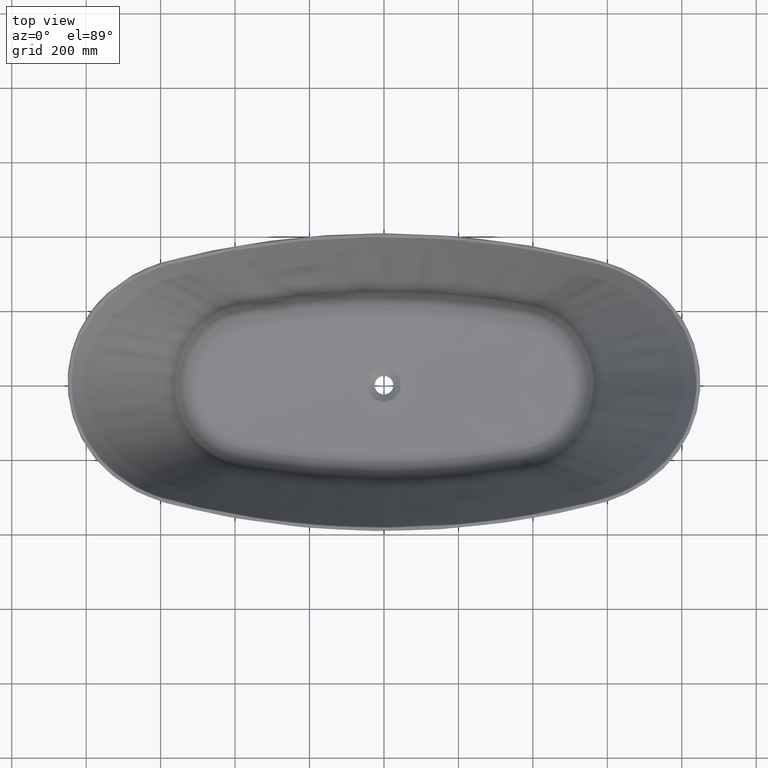
[diagram: clean part render]
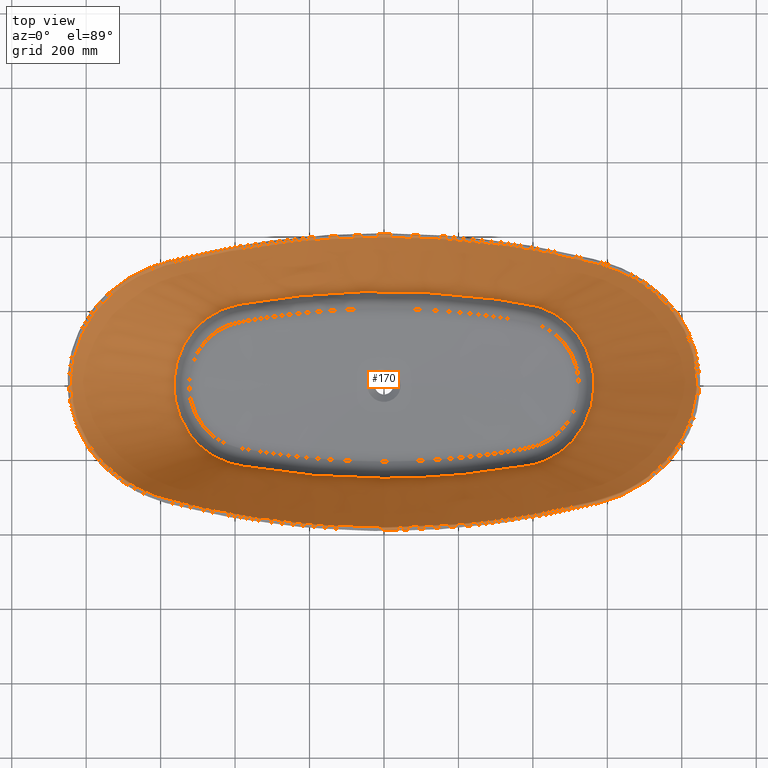
[diagram: same view with one face highlighted and labeled with its STEP entity id]
A machine part, top view. The second image highlights one B-rep face of the part: STEP entity #170.
In plain terms, the highlighted face is a freeform B-spline surface patch.
Its self-contained STEP definition (entity closure, byte-faithful):
#145=B_SPLINE_SURFACE_WITH_KNOTS('',3,3,((#9249,#9250,#9251,#9252,#9253,
#9254,#9255,#9256,#9257,#9258,#9259,#9260,#9261,#9262,#9263,#9264,#9265,
#9266,#9267,#9268,#9269,#9270,#9271,#9272,#9273,#9274,#9275,#9276,#9277,
#9278,#9279,#9280,#9281,#9282,#9283,#9284,#9285,#9286,#9287,#9288,#9289,
#9290,#9291,#9292,#9293,#9294,#9295,#9296,#9297,#9298,#9299,#9300,#9301,
#9302,#9303,#9304,#9305,#9306,#9307,#9308,#9309,#9310,#9311,#9312,#9313,
#9314,#9315,#9316,#9317,#9318,#9319,#9320,#9321,#9322,#9323,#9324,#9325,
#9326,#9327,#9328,#9329,#9330,#9331,#9332,#9333,#9334,#9335,#9336,#9337,
#9338,#9339,#9340,#9341,#9342,#9343,#9344,#9345,#9346,#9347,#9348,#9349,
#9350,#9351,#9352,#9353,#9354,#9355,#9356,#9357,#9358,#9359,#9360,#9361,
#9362,#9363,#9364,#9365,#9366,#9367,#9368,#9369,#9370,#9371,#9372,#9373,
#9374,#9375,#9376,#9377,#9378,#9379,#9380,#9381,#9382,#9383,#9384,#9385,
#9386,#9387,#9388,#9389,#9390,#9391,#9392,#9393,#9394,#9395,#9396,#9397,
#9398,#9399,#9400,#9401,#9402,#9403,#9404,#9405,#9406,#9407),(#9408,#9409,
#9410,#9411,#9412,#9413,#9414,#9415,#9416,#9417,#9418,#9419,#9420,#9421,
#9422,#9423,#9424,#9425,#9426,#9427,#9428,#9429,#9430,#9431,#9432,#9433,
#9434,#9435,#9436,#9437,#9438,#9439,#9440,#9441,#9442,#9443,#9444,#9445,
#9446,#9447,#9448,#9449,#9450,#9451,#9452,#9453,#9454,#9455,#9456,#9457,
#9458,#9459,#9460,#9461,#9462,#9463,#9464,#9465,#9466,#9467,#9468,#9469,
#9470,#9471,#9472,#9473,#9474,#9475,#9476,#9477,#9478,#9479,#9480,#9481,
#9482,#9483,#9484,#9485,#9486,#9487,#9488,#9489,#9490,#9491,#9492,#9493,
#9494,#9495,#9496,#9497,#9498,#9499,#9500,#9501,#9502,#9503,#9504,#9505,
#9506,#9507,#9508,#9509,#9510,#9511,#9512,#9513,#9514,#9515,#9516,#9517,
#9518,#9519,#9520,#9521,#9522,#9523,#9524,#9525,#9526,#9527,#9528,#9529,
#9530,#9531,#9532,#9533,#9534,#9535,#9536,#9537,#9538,#9539,#9540,#9541,
#9542,#9543,#9544,#9545,#9546,#9547,#9548,#9549,#9550,#9551,#9552,#9553,
#9554,#9555,#9556,#9557,#9558,#9559,#9560,#9561,#9562,#9563,#9564,#9565,
#9566),(#9567,#9568,#9569,#9570,#9571,#9572,#9573,#9574,#9575,#9576,#9577,
#9578,#9579,#9580,#9581,#9582,#9583,#9584,#9585,#9586,#9587,#9588,#9589,
#9590,#9591,#9592,#9593,#9594,#9595,#9596,#9597,#9598,#9599,#9600,#9601,
#9602,#9603,#9604,#9605,#9606,#9607,#9608,#9609,#9610,#9611,#9612,#9613,
#9614,#9615,#9616,#9617,#9618,#9619,#9620,#9621,#9622,#9623,#9624,#9625,
#9626,#9627,#9628,#9629,#9630,#9631,#9632,#9633,#9634,#9635,#9636,#9637,
#9638,#9639,#9640,#9641,#9642,#9643,#9644,#9645,#9646,#9647,#9648,#9649,
#9650,#9651,#9652,#9653,#9654,#9655,#9656,#9657,#9658,#9659,#9660,#9661,
#9662,#9663,#9664,#9665,#9666,#9667,#9668,#9669,#9670,#9671,#9672,#9673,
#9674,#9675,#9676,#9677,#9678,#9679,#9680,#9681,#9682,#9683,#9684,#9685,
#9686,#9687,#9688,#9689,#9690,#9691,#9692,#9693,#9694,#9695,#9696,#9697,
#9698,#9699,#9700,#9701,#9702,#9703,#9704,#9705,#9706,#9707,#9708,#9709,
#9710,#9711,#9712,#9713,#9714,#9715,#9716,#9717,#9718,#9719,#9720,#9721,
#9722,#9723,#9724,#9725),(#9726,#9727,#9728,#9729,#9730,#9731,#9732,#9733,
#9734,#9735,#9736,#9737,#9738,#9739,#9740,#9741,#9742,#9743,#9744,#9745,
#9746,#9747,#9748,#9749,#9750,#9751,#9752,#9753,#9754,#9755,#9756,#9757,
#9758,#9759,#9760,#9761,#9762,#9763,#9764,#9765,#9766,#9767,#9768,#9769,
#9770,#9771,#9772,#9773,#9774,#9775,#9776,#9777,#9778,#9779,#9780,#9781,
#9782,#9783,#9784,#9785,#9786,#9787,#9788,#9789,#9790,#9791,#9792,#9793,
#9794,#9795,#9796,#9797,#9798,#9799,#9800,#9801,#9802,#9803,#9804,#9805,
#9806,#9807,#9808,#9809,#9810,#9811,#9812,#9813,#9814,#9815,#9816,#9817,
#9818,#9819,#9820,#9821,#9822,#9823,#9824,#9825,#9826,#9827,#9828,#9829,
#9830,#9831,#9832,#9833,#9834,#9835,#9836,#9837,#9838,#9839,#9840,#9841,
#9842,#9843,#9844,#9845,#9846,#9847,#9848,#9849,#9850,#9851,#9852,#9853,
#9854,#9855,#9856,#9857,#9858,#9859,#9860,#9861,#9862,#9863,#9864,#9865,
#9866,#9867,#9868,#9869,#9870,#9871,#9872,#9873,#9874,#9875,#9876,#9877,
#9878,#9879,#9880,#9881,#9882,#9883,#9884)),.UNSPECIFIED.,.F.,.T.,.F.,(4,
4),(1,1,2,1,1,1,1,1,1,1,1,1,1,1,1,1,1,1,1,1,1,1,1,1,1,1,1,1,1,1,1,1,1,1,
1,1,1,1,1,1,1,1,1,1,1,1,1,1,1,1,1,1,1,1,1,1,1,1,1,1,1,1,1,1,1,1,1,1,1,1,
1,1,1,1,1,1,1,1,1,1,1,1,1,1,1,1,1,1,1,1,1,1,1,1,1,1,1,1,1,1,1,1,1,1,1,1,
1,1,1,1,1,1,1,1,1,1,1,1,1,1,1,1,1,1,1,1,1,1,1,1,1,1,1,1,1,1,1,1,1,1,1,1,
1,1,1,1,1,1,1,1,1,1,1,1,1,1,1,1,2,1,1),(0.,1.),(-0.03125,-0.015625,0.,0.0156250000002094,
0.0312500000004188,0.0625000000008376,0.0937500000012565,0.109375000001466,
0.125000000001675,0.13281250000178,0.136718750001832,0.140625000001885,
0.141113281251891,0.141601562501898,0.142089843751904,0.142578125001911,
0.143066406251917,0.143554687501924,0.144531250001937,0.148437500001989,
0.156250000002094,0.164062500002199,0.171875000002304,0.179687500002408,
0.183593750002461,0.185546875002487,0.186035156252493,0.1865234375025,0.187011718752506,
0.187500000002513,0.191406250002565,0.195312500002618,0.197265625002644,
0.19921875000267,0.203125000002722,0.210937500002827,0.218750000002932,
0.226562500003036,0.234375000003141,0.242187500003246,0.246093750003298,
0.250000000003351,0.253906250003339,0.257812500003327,0.265625000003303,
0.273437500003279,0.281250000003255,0.289062500003231,0.296875000003207,
0.300781250003195,0.302734375003189,0.304687500003183,0.308593750003171,
0.312500000003159,0.312988281253157,0.313476562503156,0.313964843753154,
0.314453125003153,0.316406250003147,0.320312500003135,0.328125000003111,
0.335937500003087,0.343750000003063,0.351562500003039,0.355468750003027,
0.356445312503024,0.356933593753023,0.357421875003021,0.35791015625302,
0.358398437503018,0.358886718753017,0.359375000003015,0.363281250003003,
0.367187500002991,0.375000000002967,0.390625000002919,0.406250000002871,
0.437500000002776,0.46875000000268,0.484375000002632,0.500000000002584,
0.515625000002423,0.531250000002261,0.562500000001938,0.593750000001615,
0.609375000001454,0.625000000001292,0.632812500001211,0.636718750001171,
0.64062500000113,0.641113281251125,0.64160156250112,0.642089843751115,0.64257812500111,
0.643066406251105,0.6435546875011,0.64453125000109,0.64843750000105,0.656250000000969,
0.664062500000888,0.671875000000807,0.679687500000727,0.683593750000686,
0.685546875000666,0.686035156250661,0.686523437500656,0.687011718750651,
0.687500000000646,0.691406250000606,0.695312500000565,0.697265625000545,
0.699218750000525,0.703125000000485,0.710937500000404,0.718750000000323,
0.726562500000242,0.734375000000161,0.742187500000081,0.74609375000004,
0.75,0.75390625,0.7578125,0.765625,0.7734375,0.78125,0.7890625,0.796875,
0.80078125,0.802734375,0.8046875,0.80859375,0.8125,0.81298828125,0.8134765625,
0.81396484375,0.814453125,0.81640625,0.8203125,0.828125,0.8359375,0.84375,
0.8515625,0.85546875,0.8564453125,0.85693359375,0.857421875,0.85791015625,
0.8583984375,0.85888671875,0.859375,0.86328125,0.8671875,0.875,0.890625,
0.90625,0.9375,0.96875,0.984375,1.,1.01562500000021,1.03125000000042),
 .UNSPECIFIED.);
#170=ADVANCED_FACE('',(#204,#205),#145,.T.);
#204=FACE_BOUND('',#252,.T.);
#205=FACE_BOUND('',#253,.T.);
#252=EDGE_LOOP('',(#395,#396));
#253=EDGE_LOOP('',(#397,#398,#399));
#395=ORIENTED_EDGE('',*,*,#559,.T.);
#396=ORIENTED_EDGE('',*,*,#560,.T.);
#397=ORIENTED_EDGE('',*,*,#561,.T.);
#398=ORIENTED_EDGE('',*,*,#562,.T.);
#399=ORIENTED_EDGE('',*,*,#563,.T.);
#481=VERTEX_POINT('',#9074);
#482=VERTEX_POINT('',#9075);
#483=VERTEX_POINT('',#9214);
#484=VERTEX_POINT('',#9215);
#485=VERTEX_POINT('',#9242);
#559=EDGE_CURVE('',#481,#482,#632,.T.);
#560=EDGE_CURVE('',#482,#481,#633,.T.);
#561=EDGE_CURVE('',#483,#484,#634,.T.);
#562=EDGE_CURVE('',#484,#485,#635,.T.);
#563=EDGE_CURVE('',#485,#483,#636,.T.);
#632=B_SPLINE_CURVE_WITH_KNOTS('',3,(#8986,#8987,#8988,#8989,#8990,#8991,
#8992,#8993,#8994,#8995,#8996,#8997,#8998,#8999,#9000,#9001,#9002,#9003,
#9004,#9005,#9006,#9007,#9008,#9009,#9010,#9011,#9012,#9013,#9014,#9015,
#9016,#9017,#9018,#9019,#9020,#9021,#9022,#9023,#9024,#9025,#9026,#9027,
#9028,#9029,#9030,#9031,#9032,#9033,#9034,#9035,#9036,#9037,#9038,#9039,
#9040,#9041,#9042,#9043,#9044,#9045,#9046,#9047,#9048,#9049,#9050,#9051,
#9052,#9053,#9054,#9055,#9056,#9057,#9058,#9059,#9060,#9061,#9062,#9063,
#9064,#9065,#9066,#9067,#9068,#9069,#9070,#9071,#9072,#9073),
 .UNSPECIFIED.,.F.,.F.,(4,2,2,2,2,2,2,2,2,2,2,2,2,2,2,2,2,2,2,2,2,2,2,2,
2,2,2,2,2,2,2,2,2,2,2,2,2,2,2,2,2,2,2,4),(0.,0.015625,0.0312500000000001,
0.0468750000000001,0.0625000000000002,0.0781250000000002,0.0937500000000003,
0.109375,0.125,0.140625,0.1484375,0.15625,0.187500000000001,0.250000000000001,
0.312500000000001,0.375000000000001,0.437500000000001,0.500000000000001,
0.515625000000001,0.523437500000001,0.53125,0.546875,0.5625,0.578125,0.5859375,
0.59375,0.6015625,0.609375,0.625,0.640625,0.65625,0.671875,0.6796875,0.6875,
0.718749999999999,0.749999999999999,0.765624999999999,0.781249999999999,
0.796874999999999,0.804687499999999,0.812499999999999,0.874999999999999,
0.9375,1.),.UNSPECIFIED.);
#633=B_SPLINE_CURVE_WITH_KNOTS('',3,(#9076,#9077,#9078,#9079,#9080,#9081,
#9082,#9083,#9084,#9085,#9086,#9087,#9088,#9089,#9090,#9091,#9092,#9093,
#9094,#9095,#9096,#9097,#9098,#9099,#9100,#9101,#9102,#9103,#9104,#9105,
#9106,#9107,#9108,#9109,#9110,#9111),.UNSPECIFIED.,.F.,.F.,(4,2,2,2,2,2,
2,2,2,2,2,2,2,2,2,2,2,4),(0.,0.125,0.25,0.375000000000001,0.500000000000001,
0.562500000000001,0.578125000000001,0.593750000000001,0.625000000000001,
0.687500000000001,0.718750000000001,0.750000000000001,0.781250000000001,
0.8125,0.875,0.9375,0.96875,1.),.UNSPECIFIED.);
#634=B_SPLINE_CURVE_WITH_KNOTS('',3,(#9112,#9113,#9114,#9115,#9116,#9117,
#9118,#9119,#9120,#9121,#9122,#9123,#9124,#9125,#9126,#9127,#9128,#9129,
#9130,#9131,#9132,#9133,#9134,#9135,#9136,#9137,#9138,#9139,#9140,#9141,
#9142,#9143,#9144,#9145,#9146,#9147,#9148,#9149,#9150,#9151,#9152,#9153,
#9154,#9155,#9156,#9157,#9158,#9159,#9160,#9161,#9162,#9163,#9164,#9165,
#9166,#9167,#9168,#9169,#9170,#9171,#9172,#9173,#9174,#9175,#9176,#9177,
#9178,#9179,#9180,#9181,#9182,#9183,#9184,#9185,#9186,#9187,#9188,#9189,
#9190,#9191,#9192,#9193,#9194,#9195,#9196,#9197,#9198,#9199,#9200,#9201,
#9202,#9203,#9204,#9205,#9206,#9207,#9208,#9209,#9210,#9211,#9212,#9213),
 .UNSPECIFIED.,.F.,.F.,(4,2,2,2,2,2,2,2,2,2,2,2,2,2,2,2,2,2,2,2,2,2,2,2,
2,2,2,2,2,2,2,2,2,2,2,2,2,2,2,2,2,2,2,2,2,2,2,2,2,2,4),(0.,0.0624999999999997,
0.124999999999999,0.187499999999999,0.191406249999999,0.193359374999999,
0.195312499999999,0.203124999999999,0.218749999999999,0.226562499999999,
0.234374999999999,0.249999999999999,0.265624999999999,0.281249999999999,
0.296874999999999,0.3125,0.328125,0.34375,0.359375,0.375,0.40625,0.4140625,
0.421875,0.4375,0.4453125,0.453125,0.46875,0.47265625,0.474609375,0.4765625,
0.484375,0.5,0.625,0.6875,0.75,0.8125,0.84375,0.8515625,0.85546875,0.857421875,
0.859375,0.875,0.890625,0.90625,0.921875,0.9296875,0.9375,0.953125,0.96875,
0.984375,1.),.UNSPECIFIED.);
#635=B_SPLINE_CURVE_WITH_KNOTS('',3,(#9216,#9217,#9218,#9219,#9220,#9221,
#9222,#9223,#9224,#9225,#9226,#9227,#9228,#9229,#9230,#9231,#9232,#9233,
#9234,#9235,#9236,#9237,#9238,#9239,#9240,#9241),.UNSPECIFIED.,.F.,.F.,
(4,2,2,2,2,2,2,2,2,2,2,2,4),(0.,0.125,0.249999999999999,0.374999999999999,
0.499999999999998,0.624999999999998,0.687499999999999,0.749999999999999,
0.875,0.937500000000001,0.953125000000001,0.968750000000001,1.),
 .UNSPECIFIED.);
#636=B_SPLINE_CURVE_WITH_KNOTS('',3,(#9243,#9244,#9245,#9246,#9247,#9248),
 .UNSPECIFIED.,.F.,.F.,(4,2,4),(0.,0.5,1.),.UNSPECIFIED.);
#8986=CARTESIAN_POINT('',(839.111018180588,8.71481190502423E-9,-1.35168037534851));
#8987=CARTESIAN_POINT('',(839.111018233667,16.0613492830199,-1.35168038462018));
#8988=CARTESIAN_POINT('',(837.871667073924,32.0166142353585,-1.35478057480481));
#8989=CARTESIAN_POINT('',(832.923279126342,63.7157472802411,-1.36726825525255));
#8990=CARTESIAN_POINT('',(829.236252991787,79.2628448202039,-1.37660839538794));
#8991=CARTESIAN_POINT('',(819.604858820665,109.443419453308,-1.4014632368515));
#8992=CARTESIAN_POINT('',(813.652081275323,124.131776079766,-1.41697122681585));
#8993=CARTESIAN_POINT('',(799.424651923195,152.687761855276,-1.45489920391118));
#8994=CARTESIAN_POINT('',(791.119955254193,166.562063982992,-1.47741247253503));
#8995=CARTESIAN_POINT('',(772.584076756396,192.685521837539,-1.52917890627691));
#8996=CARTESIAN_POINT('',(762.275538185069,205.061677897033,-1.55866610652138));
#8997=CARTESIAN_POINT('',(739.929349994179,228.017426567244,-1.62401097788117));
#8998=CARTESIAN_POINT('',(727.808241456431,238.616591259266,-1.65688786290125));
#8999=CARTESIAN_POINT('',(702.476286413668,258.245857484468,-1.71839191140643));
#9000=CARTESIAN_POINT('',(689.150111876646,267.286846113827,-1.75022383486513));
#9001=CARTESIAN_POINT('',(661.517539037313,283.582803166213,-1.81536363400919));
#9002=CARTESIAN_POINT('',(647.238467281964,290.831756722215,-1.84858879300222));
#9003=CARTESIAN_POINT('',(617.753258987529,303.528711585728,-1.9163046076779));
#9004=CARTESIAN_POINT('',(602.650681555029,308.927523234481,-1.95071734167626));
#9005=CARTESIAN_POINT('',(579.537550617839,315.584283581853,-2.00192908208072));
#9006=CARTESIAN_POINT('',(571.738771612689,317.524012828082,-2.00933160903153));
#9007=CARTESIAN_POINT('',(556.167165912144,321.440556186939,-2.01158951067799));
#9008=CARTESIAN_POINT('',(548.372382704819,323.357823454301,-2.01264857794957));
#9009=CARTESIAN_POINT('',(509.353853791139,332.740456670033,-2.01795330150836));
#9010=CARTESIAN_POINT('',(477.995963237714,339.593315291485,-2.02186378880446));
#9011=CARTESIAN_POINT('',(383.493392470508,358.193531526825,-2.03261390409685));
#9012=CARTESIAN_POINT('',(319.915823293887,367.975673009685,-2.03845924011335));
#9013=CARTESIAN_POINT('',(192.301035002557,382.199476254489,-2.04716012104836));
#9014=CARTESIAN_POINT('',(128.331615000977,386.643277796655,-2.04999858856445));
#9015=CARTESIAN_POINT('',(0.0694303483161721,390.206324239056,-2.05228171832652));
#9016=CARTESIAN_POINT('',(-64.2238730484064,389.315943343229,-2.05169578589376));
#9017=CARTESIAN_POINT('',(-192.44044476297,382.187988688624,-2.04717987239483));
#9018=CARTESIAN_POINT('',(-256.4542155521,375.946025772089,-2.0432779932996));
#9019=CARTESIAN_POINT('',(-383.646165597074,358.167902005465,-2.03262199017853));
#9020=CARTESIAN_POINT('',(-446.731316482743,346.653542816807,-2.02588171744622));
#9021=CARTESIAN_POINT('',(-524.951293799061,328.989604788456,-2.01583406949918));
#9022=CARTESIAN_POINT('',(-540.563385509733,325.292853050533,-2.01373831609342));
#9023=CARTESIAN_POINT('',(-563.933620671866,319.501538840225,-2.01048606234556));
#9024=CARTESIAN_POINT('',(-571.727671337288,317.56570216739,-2.02025793846557));
#9025=CARTESIAN_POINT('',(-587.247398243898,313.453722287929,-1.98445729801443));
#9026=CARTESIAN_POINT('',(-594.92577925755,311.153194740102,-1.96782740859726));
#9027=CARTESIAN_POINT('',(-617.723501190918,303.539121454416,-1.91634665518073));
#9028=CARTESIAN_POINT('',(-632.646641145804,297.482731010364,-1.88224110304986));
#9029=CARTESIAN_POINT('',(-661.549502203149,283.565600982592,-1.81531592534838));
#9030=CARTESIAN_POINT('',(-675.511684303358,275.722689271637,-1.78253116872349));
#9031=CARTESIAN_POINT('',(-702.454538254827,258.262725262535,-1.71839258973797));
#9032=CARTESIAN_POINT('',(-715.33521471613,248.7083790967,-1.68729355290481));
#9033=CARTESIAN_POINT('',(-733.713849776976,233.188328989675,-1.64229641926749));
#9034=CARTESIAN_POINT('',(-739.693843409449,227.813900708136,-1.62482753229116));
#9035=CARTESIAN_POINT('',(-751.158017553872,216.63026653625,-1.59113249637282));
#9036=CARTESIAN_POINT('',(-756.665647321025,210.825825763495,-1.57507867612192));
#9037=CARTESIAN_POINT('',(-767.231274963678,198.791017367406,-1.54456503376339));
#9038=CARTESIAN_POINT('',(-772.304252038012,192.539671760541,-1.53011590184803));
#9039=CARTESIAN_POINT('',(-781.891478496623,179.745937458059,-1.50313449051104));
#9040=CARTESIAN_POINT('',(-786.412507143122,173.198676721613,-1.49057157089712));
#9041=CARTESIAN_POINT('',(-799.177229914151,153.116412263594,-1.45552867679926));
#9042=CARTESIAN_POINT('',(-806.626879628757,139.143309192175,-1.43561156940184));
#9043=CARTESIAN_POINT('',(-819.390830771488,110.018965111543,-1.40195323826033));
#9044=CARTESIAN_POINT('',(-824.721749720155,94.7686306585275,-1.38821449942528));
#9045=CARTESIAN_POINT('',(-832.909217469716,63.7791490656603,-1.36728557424017));
#9046=CARTESIAN_POINT('',(-835.80254555437,47.952099449073,-1.3599989565946));
#9047=CARTESIAN_POINT('',(-839.109132836834,16.0711423788034,-1.35167770604692));
#9048=CARTESIAN_POINT('',(-839.523862783115,-0.0257962036862004,-1.35064203435754));
#9049=CARTESIAN_POINT('',(-838.28459906999,-24.0123274418997,-1.35375437298294));
#9050=CARTESIAN_POINT('',(-837.56284194206,-31.9814167914489,-1.35556771558962));
#9051=CARTESIAN_POINT('',(-835.501915092629,-47.8667470148016,-1.36075880676506));
#9052=CARTESIAN_POINT('',(-834.157061154293,-55.80490023646,-1.36414970416041));
#9053=CARTESIAN_POINT('',(-825.969864333674,-94.893242549456,-1.38495590799187));
#9054=CARTESIAN_POINT('',(-814.822011693824,-124.569926237071,-1.41336296111707));
#9055=CARTESIAN_POINT('',(-783.24972544165,-180.517372278456,-1.49880216715529));
#9056=CARTESIAN_POINT('',(-763.167693346233,-205.921799583474,-1.55542237115965));
#9057=CARTESIAN_POINT('',(-727.86930092957,-238.630482869749,-1.65986955273059));
#9058=CARTESIAN_POINT('',(-715.350848677302,-248.696513362241,-1.68730784460628));
#9059=CARTESIAN_POINT('',(-689.192218078701,-267.259286665959,-1.75010171659418));
#9060=CARTESIAN_POINT('',(-675.489348212885,-275.73397818488,-1.78255812842135));
#9061=CARTESIAN_POINT('',(-647.238357107649,-290.830268805163,-1.84861512602783));
#9062=CARTESIAN_POINT('',(-632.606085673497,-297.49997165619,-1.8823485143221));
#9063=CARTESIAN_POINT('',(-610.139437466147,-306.071718441557,-1.93347580307817));
#9064=CARTESIAN_POINT('',(-602.569485082083,-308.689053534019,-1.95065202096841));
#9065=CARTESIAN_POINT('',(-587.267889156102,-313.445224833566,-1.98488366864879));
#9066=CARTESIAN_POINT('',(-579.514383385828,-315.524661465374,-2.00829344303308));
#9067=CARTESIAN_POINT('',(-509.494842943942,-333.397860327231,-2.01751029584956));
#9068=CARTESIAN_POINT('',(-446.654582314583,-346.671453808024,-2.02589767467002));
#9069=CARTESIAN_POINT('',(-319.953132591118,-367.971502687711,-2.03843944223723));
#9070=CARTESIAN_POINT('',(-256.153317682044,-375.977514981259,-2.04332771802591));
#9071=CARTESIAN_POINT('',(-128.319357029378,-386.643503802278,-2.04997030423242));
#9072=CARTESIAN_POINT('',(-64.2408367740741,-389.316395067484,-2.05171327609107));
#9073=CARTESIAN_POINT('',(-1.48393484951435E-10,-389.316395062581,-2.05171327545955));
#9074=CARTESIAN_POINT('',(839.111018180588,8.71481190502423E-9,-1.35168037534851));
#9075=CARTESIAN_POINT('',(-1.49351656188507E-10,-389.316395062581,-2.05171327545954));
#9076=CARTESIAN_POINT('',(-1.49351656188507E-10,-389.316395062581,-2.05171327545954));
#9077=CARTESIAN_POINT('',(42.8259418147453,-389.316395059313,-2.05171327503853));
#9078=CARTESIAN_POINT('',(85.6081828359679,-388.127404116512,-2.05094288426518));
#9079=CARTESIAN_POINT('',(171.085391833863,-383.374937641328,-2.04793172801099));
#9080=CARTESIAN_POINT('',(213.788909107467,-379.808797495514,-2.04569731488628));
#9081=CARTESIAN_POINT('',(298.889658775079,-370.314896705751,-2.03989033085264));
#9082=CARTESIAN_POINT('',(341.318794434765,-364.383187546696,-2.03632638993581));
#9083=CARTESIAN_POINT('',(425.658876862011,-350.197559162986,-2.02797413391506));
#9084=CARTESIAN_POINT('',(467.602401145026,-341.940598281998,-2.02320082582504));
#9085=CARTESIAN_POINT('',(530.177961248273,-327.809189127339,-2.01516260956964));
#9086=CARTESIAN_POINT('',(550.979965634912,-322.808266658017,-2.01205368543049));
#9087=CARTESIAN_POINT('',(576.910893602267,-316.189252245392,-2.00863508602274));
#9088=CARTESIAN_POINT('',(582.094581230565,-314.847688876605,-1.99626325325961));
#9089=CARTESIAN_POINT('',(592.368576064537,-311.889011481584,-1.97349962213114));
#9090=CARTESIAN_POINT('',(597.47021911703,-310.303574492444,-1.96208171031184));
#9091=CARTESIAN_POINT('',(612.668455562062,-305.227078879077,-1.92776156726999));
#9092=CARTESIAN_POINT('',(622.668681541023,-301.412211880262,-1.90501596615813));
#9093=CARTESIAN_POINT('',(652.166438611315,-288.70931188617,-1.83727080006511));
#9094=CARTESIAN_POINT('',(671.031157168843,-278.627001260621,-1.79319745547539));
#9095=CARTESIAN_POINT('',(697.973392424957,-261.166295179423,-1.72906001427086));
#9096=CARTESIAN_POINT('',(706.696814958033,-254.975288405227,-1.70814476247604));
#9097=CARTESIAN_POINT('',(723.580537260847,-241.892725361754,-1.66715245648111));
#9098=CARTESIAN_POINT('',(731.784510588411,-235.001975915478,-1.64828462948229));
#9099=CARTESIAN_POINT('',(747.469403901673,-220.468905727572,-1.60187315847916));
#9100=CARTESIAN_POINT('',(754.912136748794,-212.823729982925,-1.58014263648862));
#9101=CARTESIAN_POINT('',(768.999021127246,-196.77689934454,-1.53945996408182));
#9102=CARTESIAN_POINT('',(775.657207920155,-188.349788900439,-1.52059816139949));
#9103=CARTESIAN_POINT('',(794.106381562931,-162.362366217618,-1.46906884683336));
#9104=CARTESIAN_POINT('',(804.504295016316,-143.988280042592,-1.44120858259659));
#9105=CARTESIAN_POINT('',(821.521577574945,-105.155367623536,-1.39633470382889));
#9106=CARTESIAN_POINT('',(828.12579785075,-84.5809129424043,-1.37947739280231));
#9107=CARTESIAN_POINT('',(834.698976560527,-53.2271817964045,-1.36277233674922));
#9108=CARTESIAN_POINT('',(836.35498376013,-42.62891955679,-1.35860870577517));
#9109=CARTESIAN_POINT('',(838.558695945028,-21.3750200571177,-1.3530629222062));
#9110=CARTESIAN_POINT('',(839.111018145201,-10.7077649525788,-1.35168036916735));
#9111=CARTESIAN_POINT('',(839.111018180588,8.7150507407569E-9,-1.35168037534856));
#9112=CARTESIAN_POINT('',(6.84254921542939E-8,-251.040330419318,-417.072659563959));
#9113=CARTESIAN_POINT('',(-43.4397847833499,-251.040330531562,-417.072659546054));
#9114=CARTESIAN_POINT('',(-86.8156065242184,-249.774077511645,-416.693319584411));
#9115=CARTESIAN_POINT('',(-173.441101966403,-244.682715249294,-415.442708761446));
#9116=CARTESIAN_POINT('',(-216.72755690436,-240.849517815006,-414.588393978981));
#9117=CARTESIAN_POINT('',(-302.920280047632,-230.614877055226,-412.674764632824));
#9118=CARTESIAN_POINT('',(-345.860101221097,-224.214308762895,-411.610548876684));
#9119=CARTESIAN_POINT('',(-391.253217111784,-216.052616450573,-410.422808196692));
#9120=CARTESIAN_POINT('',(-393.927166951173,-215.57937554364,-410.317395154497));
#9121=CARTESIAN_POINT('',(-397.918079495362,-214.824597446449,-410.273541100041));
#9122=CARTESIAN_POINT('',(-399.229354593095,-214.531238654724,-410.375883538719));
#9123=CARTESIAN_POINT('',(-401.851012086843,-213.934168360846,-410.512186012148));
#9124=CARTESIAN_POINT('',(-403.157185246094,-213.622380401294,-410.58224624152));
#9125=CARTESIAN_POINT('',(-409.666462315567,-212.000642875385,-410.929586637829));
#9126=CARTESIAN_POINT('',(-414.803961172552,-210.500788377948,-411.206040143373));
#9127=CARTESIAN_POINT('',(-430.009792080488,-205.402586205752,-412.02918872519));
#9128=CARTESIAN_POINT('',(-439.87216090239,-201.207901963407,-412.572046390814));
#9129=CARTESIAN_POINT('',(-454.242373189049,-193.689251800312,-413.370509829104));
#9130=CARTESIAN_POINT('',(-458.981010081955,-190.963744306506,-413.635252241645));
#9131=CARTESIAN_POINT('',(-468.145189961243,-185.194623159346,-414.150306315807));
#9132=CARTESIAN_POINT('',(-472.586035129414,-182.144511009313,-414.402171941205));
#9133=CARTESIAN_POINT('',(-485.498615081921,-172.513345989335,-415.136524351582));
#9134=CARTESIAN_POINT('',(-493.566365287415,-165.458097977311,-415.59257963382));
#9135=CARTESIAN_POINT('',(-508.595967355034,-150.053738386507,-416.495273165362));
#9136=CARTESIAN_POINT('',(-515.592921075081,-141.618545463637,-416.91620115676));
#9137=CARTESIAN_POINT('',(-528.156513047273,-124.023766062297,-417.564755234063));
#9138=CARTESIAN_POINT('',(-533.764683751539,-114.841400920154,-417.842921168698));
#9139=CARTESIAN_POINT('',(-543.658675769423,-95.7213871677298,-418.323898718374));
#9140=CARTESIAN_POINT('',(-547.963303871117,-85.7299693333407,-418.526544878632));
#9141=CARTESIAN_POINT('',(-555.111256567381,-65.2061503168405,-418.857601198767));
#9142=CARTESIAN_POINT('',(-557.922322815441,-54.7920423940426,-418.984759768399));
#9143=CARTESIAN_POINT('',(-562.067128637337,-33.6691592782426,-419.170890307942));
#9144=CARTESIAN_POINT('',(-563.401022330344,-22.9604136174629,-419.229735650224));
#9145=CARTESIAN_POINT('',(-564.545778225307,-1.2391682628402,-419.280396425088));
#9146=CARTESIAN_POINT('',(-564.340731958417,9.69916172637519,-419.271390092315));
#9147=CARTESIAN_POINT('',(-562.421529696989,31.1874103225165,-419.186272180345));
#9148=CARTESIAN_POINT('',(-560.713948822385,41.8093871960979,-419.110536077032));
#9149=CARTESIAN_POINT('',(-555.801743734175,62.8088399500803,-418.888702116635));
#9150=CARTESIAN_POINT('',(-552.560785106955,73.2683347675917,-418.740884825457));
#9151=CARTESIAN_POINT('',(-540.768559900786,103.50364655667,-418.188144645475));
#9152=CARTESIAN_POINT('',(-530.233023035294,122.192243105414,-417.738716710331));
#9153=CARTESIAN_POINT('',(-513.693835213671,143.694836921852,-416.789448704071));
#9154=CARTESIAN_POINT('',(-510.196303296488,147.890673197064,-416.583492122774));
#9155=CARTESIAN_POINT('',(-502.94819249145,155.919986639984,-416.156508434005));
#9156=CARTESIAN_POINT('',(-499.183260788887,159.773696542391,-415.93035718406));
#9157=CARTESIAN_POINT('',(-487.467696327893,170.85642211786,-415.249355673911));
#9158=CARTESIAN_POINT('',(-479.106350523562,177.617149742293,-414.771919505644));
#9159=CARTESIAN_POINT('',(-465.715516112854,186.790703725901,-414.013172302874));
#9160=CARTESIAN_POINT('',(-461.088328926143,189.69681837476,-413.75339627107));
#9161=CARTESIAN_POINT('',(-451.687002003367,195.090223101278,-413.228286678454));
#9162=CARTESIAN_POINT('',(-446.905230735897,197.58493717944,-412.962478058556));
#9163=CARTESIAN_POINT('',(-432.321382579999,204.475299990962,-412.157387454074));
#9164=CARTESIAN_POINT('',(-422.282265818843,208.280648654551,-411.608717054562));
#9165=CARTESIAN_POINT('',(-409.331842713319,212.038097929218,-410.912022153265));
#9166=CARTESIAN_POINT('',(-406.721538515481,212.739286565283,-410.772261681222));
#9167=CARTESIAN_POINT('',(-402.775329873122,213.714546773143,-410.561842726655));
#9168=CARTESIAN_POINT('',(-401.454833763885,214.026916812715,-410.491258312939));
#9169=CARTESIAN_POINT('',(-398.802858356961,214.624917130851,-410.354154170396));
#9170=CARTESIAN_POINT('',(-397.471131790995,214.913149144828,-410.268047042138));
#9171=CARTESIAN_POINT('',(-390.775802362046,216.155930762974,-410.401070842541));
#9172=CARTESIAN_POINT('',(-385.412823825438,217.107231773373,-410.575814396969));
#9173=CARTESIAN_POINT('',(-369.319965333715,219.934401730978,-410.993890561409));
#9174=CARTESIAN_POINT('',(-358.583071675229,221.737586879844,-411.268631944125));
#9175=CARTESIAN_POINT('',(-261.876449049463,237.235756036222,-413.701486053298));
#9176=CARTESIAN_POINT('',(-175.387248471989,245.824616732534,-415.67692697947));
#9177=CARTESIAN_POINT('',(-44.8457411663447,251.016676699208,-417.049405193826));
#9178=CARTESIAN_POINT('',(-1.19840355520975,251.465857096227,-417.190607855349));
#9179=CARTESIAN_POINT('',(85.9009919755195,249.809578822213,-416.727776840763));
#9180=CARTESIAN_POINT('',(129.386574125463,247.704816906578,-416.146722600771));
#9181=CARTESIAN_POINT('',(216.231282779646,240.900572587613,-414.614812435986));
#9182=CARTESIAN_POINT('',(259.575086247032,236.199077736009,-413.670307248669));
#9183=CARTESIAN_POINT('',(324.268850605842,227.214594878076,-412.131462658691));
#9184=CARTESIAN_POINT('',(345.789129044717,223.897205080303,-411.596366013335));
#9185=CARTESIAN_POINT('',(372.634081783904,219.345887125368,-410.907471758665));
#9186=CARTESIAN_POINT('',(378.000356301212,218.415368034622,-410.768659115214));
#9187=CARTESIAN_POINT('',(386.045428907848,216.989152797791,-410.559081151158));
#9188=CARTESIAN_POINT('',(388.725431461074,216.508841098971,-410.489028900915));
#9189=CARTESIAN_POINT('',(392.742902424161,215.781011995027,-410.38365683674));
#9190=CARTESIAN_POINT('',(394.082035140103,215.538024707074,-410.345827739732));
#9191=CARTESIAN_POINT('',(396.758415388368,215.047443118201,-410.27762631587));
#9192=CARTESIAN_POINT('',(398.086822921399,214.781651555903,-410.312195633209));
#9193=CARTESIAN_POINT('',(409.942744699614,212.139812665966,-410.965447576631));
#9194=CARTESIAN_POINT('',(420.206135746693,208.989498177547,-411.495276291442));
#9195=CARTESIAN_POINT('',(440.171258162381,201.067672859643,-412.588540899223));
#9196=CARTESIAN_POINT('',(449.914290784191,196.282169284983,-413.128309166244));
#9197=CARTESIAN_POINT('',(468.657963204918,185.115599996509,-414.177503183671));
#9198=CARTESIAN_POINT('',(477.457309728342,178.861148933852,-414.67682002182));
#9199=CARTESIAN_POINT('',(493.969321308716,165.078097676278,-415.625049831811));
#9200=CARTESIAN_POINT('',(501.680806573993,157.548774736426,-416.083726306007));
#9201=CARTESIAN_POINT('',(512.406865463272,145.267119353275,-416.712085743635));
#9202=CARTESIAN_POINT('',(515.842726175436,140.991594480134,-416.921369709537));
#9203=CARTESIAN_POINT('',(522.341731426158,132.27537987849,-417.269136650108));
#9204=CARTESIAN_POINT('',(525.422730706569,127.820720884399,-417.422717301743));
#9205=CARTESIAN_POINT('',(534.157091970772,114.166487341844,-417.86351847002));
#9206=CARTESIAN_POINT('',(539.310664497338,104.68122288945,-418.114398817484));
#9207=CARTESIAN_POINT('',(548.276859848701,84.9448437964166,-418.54173261944));
#9208=CARTESIAN_POINT('',(552.098715561686,74.6302211994153,-418.718689978758));
#9209=CARTESIAN_POINT('',(558.164182574031,53.8138790222767,-418.996323511712));
#9210=CARTESIAN_POINT('',(560.443104444471,43.2553331874694,-419.098175755843));
#9211=CARTESIAN_POINT('',(563.507742991527,21.8404218085135,-419.234588553629));
#9212=CARTESIAN_POINT('',(564.291899577378,10.9388542218747,-419.269137860795));
#9213=CARTESIAN_POINT('',(564.291896834712,-7.21899311054461E-6,-419.269137945364));
#9214=CARTESIAN_POINT('',(6.84254314519584E-8,-251.040330419318,-417.072659563959));
#9215=CARTESIAN_POINT('',(564.291896834712,-7.21899311054461E-6,-419.269137945364));
#9216=CARTESIAN_POINT('',(564.291896834712,-7.21899311024439E-6,-419.269137945364));
#9217=CARTESIAN_POINT('',(564.291893578781,-12.9859779718231,-419.269138045759));
#9218=CARTESIAN_POINT('',(563.199599408435,-25.793577845378,-419.221182037645));
#9219=CARTESIAN_POINT('',(558.911987943466,-51.0653295069001,-419.029563475683));
#9220=CARTESIAN_POINT('',(555.699139021129,-63.5790285411558,-418.884918453462));
#9221=CARTESIAN_POINT('',(547.139020689725,-88.0341459262256,-418.488280779191));
#9222=CARTESIAN_POINT('',(541.888434576051,-99.7282406182793,-418.240129578177));
#9223=CARTESIAN_POINT('',(529.511432493993,-122.084937591223,-417.632428921239));
#9224=CARTESIAN_POINT('',(522.396924675087,-132.75465699115,-417.294229238512));
#9225=CARTESIAN_POINT('',(506.14791786631,-152.979157172613,-416.346444342784));
#9226=CARTESIAN_POINT('',(497.180457386436,-162.197699198979,-415.810877985878));
#9227=CARTESIAN_POINT('',(482.577002810318,-174.66318080985,-414.970302327138));
#9228=CARTESIAN_POINT('',(477.512586982532,-178.594354781038,-414.681903151497));
#9229=CARTESIAN_POINT('',(466.982798351538,-185.99965148413,-414.08478037705));
#9230=CARTESIAN_POINT('',(461.485912948091,-189.489113999819,-413.775502227279));
#9231=CARTESIAN_POINT('',(444.665551107319,-199.074660618169,-412.83632221684));
#9232=CARTESIAN_POINT('',(432.995436685148,-204.328037046454,-412.191623932095));
#9233=CARTESIAN_POINT('',(414.815667145066,-210.529310589923,-411.206384522967));
#9234=CARTESIAN_POINT('',(408.642791723238,-212.315212360454,-410.874199437998));
#9235=CARTESIAN_POINT('',(400.780803230777,-214.184613511008,-410.455720945434));
#9236=CARTESIAN_POINT('',(399.205832299191,-214.554143728439,-410.326730594366));
#9237=CARTESIAN_POINT('',(396.021978312171,-215.199611323837,-410.252744216766));
#9238=CARTESIAN_POINT('',(394.424274432665,-215.475230943204,-410.338314272487));
#9239=CARTESIAN_POINT('',(389.636048654622,-216.345020297893,-410.466783346197));
#9240=CARTESIAN_POINT('',(386.442726870969,-216.918908858619,-410.548725029057));
#9241=CARTESIAN_POINT('',(383.248029196379,-217.485077725216,-410.631940195746));
#9242=CARTESIAN_POINT('',(383.248029196379,-217.485077725216,-410.631940195746));
#9243=CARTESIAN_POINT('',(383.248029196379,-217.485077725216,-410.631940195746));
#9244=CARTESIAN_POINT('',(319.941035389711,-228.704433226759,-412.280954462139));
#9245=CARTESIAN_POINT('',(256.345443725705,-237.089367139136,-413.816171051195));
#9246=CARTESIAN_POINT('',(128.575673149624,-248.258567079652,-416.227399081877));
#9247=CARTESIAN_POINT('',(64.3157078508657,-251.040330253134,-417.072659590468));
#9248=CARTESIAN_POINT('',(6.84254314519584E-8,-251.040330419318,-417.072659563959));
#9249=CARTESIAN_POINT('',(-21.3981786404262,389.999999998853,-1.59541100364191E-14));
#9250=CARTESIAN_POINT('',(21.3981786454085,390.000000001147,1.59541091364466E-14));
#9251=CARTESIAN_POINT('',(64.1945342902969,389.406057408593,4.47720705675141E-7));
#9252=CARTESIAN_POINT('',(149.721349643869,385.844230962001,2.91284125252318E-6));
#9253=CARTESIAN_POINT('',(256.382771384317,376.944237634547,8.52263388025955E-6));
#9254=CARTESIAN_POINT('',(362.386285921204,362.141367493442,1.63975984476713E-5));
#9255=CARTESIAN_POINT('',(446.598473229155,346.784701387307,2.33930628738701E-5));
#9256=CARTESIAN_POINT('',(498.946930440459,335.729762508546,2.79167646304533E-5));
#9257=CARTESIAN_POINT('',(535.41146548445,327.233039646952,3.1090330130847E-5));
#9258=CARTESIAN_POINT('',(556.199027401082,322.160537157731,3.28954198675E-5));
#9259=CARTESIAN_POINT('',(567.227207858515,319.38844110021,3.38495710351835E-5));
#9260=CARTESIAN_POINT('',(573.707992717917,317.731994744074,3.4408639727633E-5));
#9261=CARTESIAN_POINT('',(575.650686259363,317.233814349813,3.45762088257353E-5));
#9262=CARTESIAN_POINT('',(577.592214525398,316.734921325262,3.47436213512597E-5));
#9263=CARTESIAN_POINT('',(579.534614584255,316.228810131493,3.49108722412605E-5));
#9264=CARTESIAN_POINT('',(581.473567693943,315.712244294344,3.50779564327923E-5));
#9265=CARTESIAN_POINT('',(584.054465014333,315.009665882655,3.53005063396154E-5));
#9266=CARTESIAN_POINT('',(591.134809552465,313.021028101316,3.59115460493991E-5));
#9267=CARTESIAN_POINT('',(607.749718732974,307.88260008639,3.73477205495278E-5));
#9268=CARTESIAN_POINT('',(632.774289901678,298.372762391159,3.95208271701108E-5));
#9269=CARTESIAN_POINT('',(661.739142624217,284.476320031523,4.20495891134601E-5));
#9270=CARTESIAN_POINT('',(689.431764067451,268.19390707781,4.44786472307236E-5));
#9271=CARTESIAN_POINT('',(711.289848237879,252.729464911601,4.64024942860921E-5));
#9272=CARTESIAN_POINT('',(725.859218585379,240.974849218747,4.7687421204294E-5));
#9273=CARTESIAN_POINT('',(732.457446152484,235.298843794293,4.82686027831677E-5));
#9274=CARTESIAN_POINT('',(735.455655363663,232.649363036814,4.85337792465941E-5));
#9275=CARTESIAN_POINT('',(736.956467769254,231.308967833687,4.86657501776895E-5));
#9276=CARTESIAN_POINT('',(738.443516578084,229.962514338115,4.87970987452216E-5));
#9277=CARTESIAN_POINT('',(743.369610593482,225.443588608767,4.92328358819661E-5));
#9278=CARTESIAN_POINT('',(751.525304122996,217.515233304557,4.99574605333479E-5));
#9279=CARTESIAN_POINT('',(760.623293904121,207.708568926634,5.0774067162238E-5));
#9280=CARTESIAN_POINT('',(767.591419385234,199.588960055464,5.14045205747217E-5));
#9281=CARTESIAN_POINT('',(774.348149925154,191.292171725298,5.2019320688771E-5));
#9282=CARTESIAN_POINT('',(785.605571030385,176.322585383232,5.3052996880177E-5));
#9283=CARTESIAN_POINT('',(799.999748101772,153.736238799997,5.44025565600122E-5));
#9284=CARTESIAN_POINT('',(814.39000104651,124.997758866807,5.57978974013156E-5));
#9285=CARTESIAN_POINT('',(825.744255394243,94.9301755367733,5.69483696433848E-5));
#9286=CARTESIAN_POINT('',(833.941844215412,63.8531875194228,5.78332354614843E-5));
#9287=CARTESIAN_POINT('',(838.069673594006,37.389895946403,5.83320034359795E-5));
#9288=CARTESIAN_POINT('',(839.724289167582,16.0486285484286,5.85774767788553E-5));
#9289=CARTESIAN_POINT('',(840.137721593366,1.50854615910134E-7,5.86822190395595E-5));
#9290=CARTESIAN_POINT('',(839.724289155273,-16.0486286655502,5.87050063257206E-5));
#9291=CARTESIAN_POINT('',(838.069673571601,-37.3898959811769,5.86294893516204E-5));
#9292=CARTESIAN_POINT('',(833.941844175165,-63.8531877481292,5.83428554866684E-5));
#9293=CARTESIAN_POINT('',(825.744255347573,-94.9301759874916,5.77115542754452E-5));
#9294=CARTESIAN_POINT('',(814.389999833571,-124.997761820178,5.68131521533837E-5));
#9295=CARTESIAN_POINT('',(799.999752597519,-153.73623156102,5.56678887829261E-5));
#9296=CARTESIAN_POINT('',(785.605586081817,-176.322571343129,5.45246513192502E-5));
#9297=CARTESIAN_POINT('',(774.348136637216,-191.292184662192,5.36340930031408E-5));
#9298=CARTESIAN_POINT('',(767.591404967126,-199.588974434157,5.31006697752563E-5));
#9299=CARTESIAN_POINT('',(760.623296822299,-207.708567750853,5.25513130326486E-5));
#9300=CARTESIAN_POINT('',(751.525379131044,-217.515166416693,5.18355323760968E-5));
#9301=CARTESIAN_POINT('',(743.369634131112,-225.443569440243,5.1195948179409E-5));
#9302=CARTESIAN_POINT('',(738.443516418515,-229.962517629115,5.08100013259691E-5));
#9303=CARTESIAN_POINT('',(736.956477889898,-231.308961748642,5.0693574154235E-5));
#9304=CARTESIAN_POINT('',(735.455638733014,-232.649380965152,5.05765088081228E-5));
#9305=CARTESIAN_POINT('',(732.457445819266,-235.298847057594,5.03411116497896E-5));
#9306=CARTESIAN_POINT('',(725.859202783417,-240.97486615435,4.98242779796535E-5));
#9307=CARTESIAN_POINT('',(711.289846075196,-252.729469885531,4.86770202866829E-5));
#9308=CARTESIAN_POINT('',(689.431746284279,-268.193922884666,4.69470413901811E-5));
#9309=CARTESIAN_POINT('',(661.73915203321,-284.476320361108,4.4745643440637E-5));
#9310=CARTESIAN_POINT('',(632.774294468791,-298.37276688866,4.24390618797935E-5));
#9311=CARTESIAN_POINT('',(607.749720465422,-307.882606187952,4.0446123955043E-5));
#9312=CARTESIAN_POINT('',(591.13481932064,-313.021032770317,3.91244281875991E-5));
#9313=CARTESIAN_POINT('',(584.054464962691,-315.009673458727,3.856134016605E-5));
#9314=CARTESIAN_POINT('',(581.473567883389,-315.712251933819,3.83561742097259E-5));
#9315=CARTESIAN_POINT('',(579.534618173996,-316.228816977424,3.82021013459261E-5));
#9316=CARTESIAN_POINT('',(577.592226048432,-316.73492619231,3.80478350268937E-5));
#9317=CARTESIAN_POINT('',(575.650668548064,-317.233826789001,3.78933801939523E-5));
#9318=CARTESIAN_POINT('',(573.707970168955,-317.732008474521,3.77387417884259E-5));
#9319=CARTESIAN_POINT('',(567.227212862432,-319.388447899299,3.72226849991337E-5));
#9320=CARTESIAN_POINT('',(556.199055203248,-322.160538284193,3.63409593639335E-5));
#9321=CARTESIAN_POINT('',(535.411486058852,-327.233043140354,3.46697922569532E-5));
#9322=CARTESIAN_POINT('',(498.946894405522,-335.729781476498,3.17240529783989E-5));
#9323=CARTESIAN_POINT('',(446.598477825505,-346.784711583968,2.75058907613164E-5));
#9324=CARTESIAN_POINT('',(362.386260457317,-362.141385573313,2.0951466018235E-5));
#9325=CARTESIAN_POINT('',(256.382779498872,-376.944248558933,1.35281685962003E-5));
#9326=CARTESIAN_POINT('',(149.721350969202,-385.844264000327,8.21063118018073E-6));
#9327=CARTESIAN_POINT('',(64.1945326249109,-389.406054521019,5.86772644912959E-6));
#9328=CARTESIAN_POINT('',(-1.14891918201465E-8,-390.296948239374,5.22802780126388E-6));
#9329=CARTESIAN_POINT('',(-64.19453264413,-389.40605452963,5.86772635334882E-6));
#9330=CARTESIAN_POINT('',(-149.721349623465,-385.844264268669,8.21063095766387E-6));
#9331=CARTESIAN_POINT('',(-256.382771366723,-376.944250082795,1.35281682189688E-5));
#9332=CARTESIAN_POINT('',(-362.386285814537,-362.141381001796,2.09514654962323E-5));
#9333=CARTESIAN_POINT('',(-446.598473267842,-346.784713192896,2.75058901324644E-5));
#9334=CARTESIAN_POINT('',(-498.94690445897,-335.729779490902,3.17240522871279E-5));
#9335=CARTESIAN_POINT('',(-535.411507476101,-327.233037911641,3.46697915246072E-5));
#9336=CARTESIAN_POINT('',(-556.199078032322,-322.160532560218,3.6340958608911E-5));
#9337=CARTESIAN_POINT('',(-567.22721719685,-319.388446871933,3.72226842323542E-5));
#9338=CARTESIAN_POINT('',(-573.707985823042,-317.732004543856,3.77387410148292E-5));
#9339=CARTESIAN_POINT('',(-575.650684441481,-317.233822774331,3.78933794183171E-5));
#9340=CARTESIAN_POINT('',(-577.592212257902,-316.734929780751,3.80478342492265E-5));
#9341=CARTESIAN_POINT('',(-579.534595180853,-316.228823083032,3.82021005662336E-5));
#9342=CARTESIAN_POINT('',(-581.473541435856,-315.712259061654,3.83561734280147E-5));
#9343=CARTESIAN_POINT('',(-584.054439230108,-315.00968056725,3.85613393816563E-5));
#9344=CARTESIAN_POINT('',(-591.134807835569,-313.02103664409,3.91244273958652E-5));
#9345=CARTESIAN_POINT('',(-607.749687091678,-307.882617061739,4.04461231462525E-5));
#9346=CARTESIAN_POINT('',(-632.774280139143,-298.372773186737,4.24390610458731E-5));
#9347=CARTESIAN_POINT('',(-661.739117577856,-284.476339344691,4.47456425784321E-5));
#9348=CARTESIAN_POINT('',(-689.431771648958,-268.193906941301,4.69470405016568E-5));
#9349=CARTESIAN_POINT('',(-711.289843891458,-252.729472693858,4.86770193779416E-5));
#9350=CARTESIAN_POINT('',(-725.859224954328,-240.974846983702,4.98242770577022E-5));
#9351=CARTESIAN_POINT('',(-732.45743803565,-235.298854319878,5.03411107219284E-5));
#9352=CARTESIAN_POINT('',(-735.455663347099,-232.649359075317,5.05765078775775E-5));
#9353=CARTESIAN_POINT('',(-736.956452390623,-231.308984775784,5.06935732223563E-5));
#9354=CARTESIAN_POINT('',(-738.443501087262,-229.962531494816,5.08100003927657E-5));
#9355=CARTESIAN_POINT('',(-743.369602467931,-225.443599582302,5.11959472418193E-5));
#9356=CARTESIAN_POINT('',(-751.525286530668,-217.515253207725,5.1835531431274E-5));
#9357=CARTESIAN_POINT('',(-760.623283340838,-207.708583041586,5.25513120797941E-5));
#9358=CARTESIAN_POINT('',(-767.591410747111,-199.588972827041,5.31006688162691E-5));
#9359=CARTESIAN_POINT('',(-774.348141429255,-191.292184878176,5.36340920382178E-5));
#9360=CARTESIAN_POINT('',(-785.605559894599,-176.322602505338,5.45246503444617E-5));
#9361=CARTESIAN_POINT('',(-799.999735177797,-153.736264024737,5.56678877955656E-5));
#9362=CARTESIAN_POINT('',(-814.390004230416,-124.997753723274,5.68131511534645E-5));
#9363=CARTESIAN_POINT('',(-825.744255346941,-94.9301760604157,5.77115532655893E-5));
#9364=CARTESIAN_POINT('',(-833.941844198859,-63.8531877538665,5.83428544695912E-5));
#9365=CARTESIAN_POINT('',(-838.069673585386,-37.3898959246928,5.86294883308667E-5));
#9366=CARTESIAN_POINT('',(-839.72428916221,-16.0486286995374,5.87050053034771E-5));
#9367=CARTESIAN_POINT('',(-840.13772159315,2.65661528331407E-7,5.86822180169363E-5));
#9368=CARTESIAN_POINT('',(-839.7242891615,16.0486285709837,5.85774757566023E-5));
#9369=CARTESIAN_POINT('',(-838.0696735824,37.3898959533759,5.83320024152051E-5));
#9370=CARTESIAN_POINT('',(-833.941844191806,63.8531875379779,5.78332344443748E-5));
#9371=CARTESIAN_POINT('',(-825.744255386365,94.9301754793742,5.69483686334862E-5));
#9372=CARTESIAN_POINT('',(-814.389999877039,124.997760972331,5.57978964013466E-5));
#9373=CARTESIAN_POINT('',(-799.99975263652,153.736230287152,5.44025555725975E-5));
#9374=CARTESIAN_POINT('',(-785.605586492845,176.322569296264,5.30529959053332E-5));
#9375=CARTESIAN_POINT('',(-774.34813616096,191.292183070634,5.20193197237928E-5));
#9376=CARTESIAN_POINT('',(-767.59140444292,199.588972684832,5.14045196156797E-5));
#9377=CARTESIAN_POINT('',(-760.623296818519,207.708565330921,5.07740662093294E-5));
#9378=CARTESIAN_POINT('',(-751.525381335367,217.515161757788,4.99574595884721E-5));
#9379=CARTESIAN_POINT('',(-743.369633470002,225.443567104567,4.92328349443246E-5));
#9380=CARTESIAN_POINT('',(-738.443516787176,229.962514213705,4.87970978119673E-5));
#9381=CARTESIAN_POINT('',(-736.95647847291,231.308958099885,4.86657492457602E-5));
#9382=CARTESIAN_POINT('',(-735.45563457003,232.649381540269,4.85337783159984E-5));
#9383=CARTESIAN_POINT('',(-732.457423521209,235.298863315406,4.82686018552568E-5));
#9384=CARTESIAN_POINT('',(-725.859194336956,240.974869352428,4.76874202822942E-5));
#9385=CARTESIAN_POINT('',(-711.289826842633,252.729480955577,4.64024933773056E-5));
#9386=CARTESIAN_POINT('',(-689.431728734162,268.193928806661,4.44786463421597E-5));
#9387=CARTESIAN_POINT('',(-661.739159239591,284.476310618557,4.20495882512237E-5));
#9388=CARTESIAN_POINT('',(-632.774293929221,298.372761398207,3.95208263361682E-5));
#9389=CARTESIAN_POINT('',(-607.749716968829,307.882600093076,3.73477197407236E-5));
#9390=CARTESIAN_POINT('',(-591.13482406973,313.02102406297,3.59115452576572E-5));
#9391=CARTESIAN_POINT('',(-584.054461844696,315.00966656457,3.53005055552162E-5));
#9392=CARTESIAN_POINT('',(-581.473565052516,315.712244889597,3.50779556510766E-5));
#9393=CARTESIAN_POINT('',(-579.534618229074,316.228809134003,3.4910871461564E-5));
#9394=CARTESIAN_POINT('',(-577.592232756738,316.734916581093,3.47436205735892E-5));
#9395=CARTESIAN_POINT('',(-575.65064514454,317.233824860445,3.45762080500975E-5));
#9396=CARTESIAN_POINT('',(-573.707942286258,317.732007626944,3.44086389540344E-5));
#9397=CARTESIAN_POINT('',(-567.227215014745,319.388439075197,3.38495702684044E-5));
#9398=CARTESIAN_POINT('',(-556.19908410825,322.16052215337,3.28954191124819E-5));
#9399=CARTESIAN_POINT('',(-535.411506455555,327.233028400197,3.10903293985127E-5));
#9400=CARTESIAN_POINT('',(-498.946852792627,335.729781306296,2.79167639392071E-5));
#9401=CARTESIAN_POINT('',(-446.598458052445,346.784703539281,2.33930622450612E-5));
#9402=CARTESIAN_POINT('',(-362.386241422433,362.141375012139,1.63975979257374E-5));
#9403=CARTESIAN_POINT('',(-256.382785549357,376.944235189841,8.52263350311687E-6));
#9404=CARTESIAN_POINT('',(-149.721352005576,385.844230541926,2.91284103008497E-6));
#9405=CARTESIAN_POINT('',(-64.1945342866051,389.406057401366,4.47720609938483E-7));
#9406=CARTESIAN_POINT('',(-21.3981786404262,389.999999998853,-1.59541100364191E-14));
#9407=CARTESIAN_POINT('',(21.3981786454085,390.000000001147,1.59541091364466E-14));
#9408=CARTESIAN_POINT('',(-18.9405562108821,339.999999999152,-150.069689170461));
#9409=CARTESIAN_POINT('',(18.9405562137587,340.000000000848,-150.069689170461));
#9410=CARTESIAN_POINT('',(56.8216659774336,339.514383177156,-150.04787350489));
#9411=CARTESIAN_POINT('',(132.53271163821,336.60272701814,-149.920418046312));
#9412=CARTESIAN_POINT('',(226.979784762936,329.327029179366,-149.621530275125));
#9413=CARTESIAN_POINT('',(320.917713596186,317.223304290695,-149.198542954182));
#9414=CARTESIAN_POINT('',(395.611833643232,304.664089554506,-148.814719219878));
#9415=CARTESIAN_POINT('',(442.076002315934,295.621517609847,-148.560086704965));
#9416=CARTESIAN_POINT('',(474.46327999657,288.670189989766,-148.375757308738));
#9417=CARTESIAN_POINT('',(492.931936732824,284.520020844554,-148.268874260321));
#9418=CARTESIAN_POINT('',(502.731270232348,282.251944107799,-148.211577814583));
#9419=CARTESIAN_POINT('',(508.490650104445,280.896692730875,-148.177714917091));
#9420=CARTESIAN_POINT('',(510.21739235651,280.489037313556,-148.167545223582));
#9421=CARTESIAN_POINT('',(511.943315597274,280.0806679517,-148.157364486601));
#9422=CARTESIAN_POINT('',(513.669788478198,279.667308201513,-148.147172223959));
#9423=CARTESIAN_POINT('',(515.393800226044,279.246049656808,-148.136982283407));
#9424=CARTESIAN_POINT('',(517.688771968417,278.670770578798,-148.123457479326));
#9425=CARTESIAN_POINT('',(523.985624655588,277.035715903436,-148.086470491444));
#9426=CARTESIAN_POINT('',(538.763795983448,272.755718094775,-148.000737380387));
#9427=CARTESIAN_POINT('',(561.025439965975,264.652257862543,-147.875278399902));
#9428=CARTESIAN_POINT('',(586.768618900046,252.575710229955,-147.735658031618));
#9429=CARTESIAN_POINT('',(611.330938020446,238.244878445742,-147.607513819901));
#9430=CARTESIAN_POINT('',(630.652200061779,224.517294936551,-147.510707373924));
#9431=CARTESIAN_POINT('',(643.486250303317,214.035069486969,-147.448366232147));
#9432=CARTESIAN_POINT('',(649.28394899169,208.966470138655,-147.420701486139));
#9433=CARTESIAN_POINT('',(651.918444034769,206.596705984998,-147.408181130042));
#9434=CARTESIAN_POINT('',(653.23482594285,205.399289217388,-147.401970647177));
#9435=CARTESIAN_POINT('',(654.540013432124,204.195747994683,-147.395809957541));
#9436=CARTESIAN_POINT('',(658.863370747351,200.156535483243,-147.375440629481));
#9437=CARTESIAN_POINT('',(666.015083142443,193.073209880326,-147.342087487839));
#9438=CARTESIAN_POINT('',(673.983062545573,184.316793629539,-147.305542922303));
#9439=CARTESIAN_POINT('',(680.077993219061,177.069819949154,-147.277966256114));
#9440=CARTESIAN_POINT('',(685.986663184665,169.669803140023,-147.251360209705));
#9441=CARTESIAN_POINT('',(695.828759348485,156.331559003725,-147.207330921473));
#9442=CARTESIAN_POINT('',(708.407563585499,136.240870265822,-147.151747506657));
#9443=CARTESIAN_POINT('',(720.97687623045,110.723005318253,-147.096921281288));
#9444=CARTESIAN_POINT('',(730.890727693516,84.0600945119633,-147.054124630859));
#9445=CARTESIAN_POINT('',(738.046263649558,56.5277652177366,-147.023473055196));
#9446=CARTESIAN_POINT('',(741.648832388941,33.0969731249558,-147.008118263644));
#9447=CARTESIAN_POINT('',(743.092727732225,14.2054125211781,-147.001973772489));
#9448=CARTESIAN_POINT('',(743.45349967438,1.1932802494267E-7,-147.00044016738));
#9449=CARTESIAN_POINT('',(743.092726081414,-14.2054125410742,-147.001973736075));
#9450=CARTESIAN_POINT('',(741.648821616544,-33.0969729354824,-147.008118303892));
#9451=CARTESIAN_POINT('',(738.046267676933,-56.5277654418783,-147.023472696221));
#9452=CARTESIAN_POINT('',(730.890724300848,-84.0600940916184,-147.054124310132));
#9453=CARTESIAN_POINT('',(720.976877626103,-110.723007814612,-147.096920659021));
#9454=CARTESIAN_POINT('',(708.407569685745,-136.240867742118,-147.151746744336));
#9455=CARTESIAN_POINT('',(695.828770837372,-156.331550714396,-147.207330074215));
#9456=CARTESIAN_POINT('',(685.986654621001,-169.669812175971,-147.251359322762));
#9457=CARTESIAN_POINT('',(680.077983625881,-177.069829772792,-147.277965334525));
#9458=CARTESIAN_POINT('',(673.983064563847,-184.316793095001,-147.3055419552));
#9459=CARTESIAN_POINT('',(666.015100061242,-193.073140980045,-147.342087893139));
#9460=CARTESIAN_POINT('',(658.863387232361,-200.156523551683,-147.375439528153));
#9461=CARTESIAN_POINT('',(654.54001303161,-204.19575026271,-147.395808875938));
#9462=CARTESIAN_POINT('',(653.234832468915,-205.399285300688,-147.401969554282));
#9463=CARTESIAN_POINT('',(651.918432716673,-206.596718075805,-147.408180029543));
#9464=CARTESIAN_POINT('',(649.283948565902,-208.966472487194,-147.420700368414));
#9465=CARTESIAN_POINT('',(643.486239641624,-214.035081003319,-147.448365077084));
#9466=CARTESIAN_POINT('',(630.652198783063,-224.517298784337,-147.510706132969));
#9467=CARTESIAN_POINT('',(611.33092623752,-238.244888686528,-147.607512488684));
#9468=CARTESIAN_POINT('',(586.768625948642,-252.57571455198,-147.735656501994));
#9469=CARTESIAN_POINT('',(561.025440785096,-264.652247453586,-147.875277058956));
#9470=CARTESIAN_POINT('',(538.763804877528,-272.755766253835,-148.000734930433));
#9471=CARTESIAN_POINT('',(523.985631218007,-277.035720082345,-148.086468744033));
#9472=CARTESIAN_POINT('',(517.688771964726,-278.670776699867,-148.123455706671));
#9473=CARTESIAN_POINT('',(515.393800378696,-279.246055824936,-148.136980501489));
#9474=CARTESIAN_POINT('',(513.669790902481,-279.667313846782,-148.147170434867));
#9475=CARTESIAN_POINT('',(511.943318867412,-280.080646930845,-148.157363138247));
#9476=CARTESIAN_POINT('',(510.217381687947,-280.489053041371,-148.167543308529));
#9477=CARTESIAN_POINT('',(508.490634821425,-280.896701402592,-148.177713135058));
#9478=CARTESIAN_POINT('',(502.73127414936,-282.251952932361,-148.211575924423));
#9479=CARTESIAN_POINT('',(492.93195504493,-284.520021341294,-148.268872441581));
#9480=CARTESIAN_POINT('',(474.463293857947,-288.6701942499,-148.375755178723));
#9481=CARTESIAN_POINT('',(442.075978227717,-295.621531048382,-148.560086718348));
#9482=CARTESIAN_POINT('',(395.611836769688,-304.664098797702,-148.814700395646));
#9483=CARTESIAN_POINT('',(320.917696628178,-317.223317365018,-149.198560370885));
#9484=CARTESIAN_POINT('',(226.979790224323,-329.32704050303,-149.621501138885));
#9485=CARTESIAN_POINT('',(132.532712519105,-336.602749278153,-149.920438056642));
#9486=CARTESIAN_POINT('',(56.8216648894935,-339.514386664895,-150.047871233962));
#9487=CARTESIAN_POINT('',(-4.33221766608464E-8,-340.242786181283,-150.080591692796));
#9488=CARTESIAN_POINT('',(-56.8216649154598,-339.514386746613,-150.047871229618));
#9489=CARTESIAN_POINT('',(-132.532711602121,-336.602750460663,-149.920414832011));
#9490=CARTESIAN_POINT('',(-226.979784761265,-329.327040349847,-149.621527682644));
#9491=CARTESIAN_POINT('',(-320.917713529955,-317.223315198625,-149.198540463072));
#9492=CARTESIAN_POINT('',(-395.611833677953,-304.664099069664,-148.81471698706));
#9493=CARTESIAN_POINT('',(-442.075985005309,-295.621530348193,-148.560084635164));
#9494=CARTESIAN_POINT('',(-474.463308002465,-288.670190100194,-148.375755363094));
#9495=CARTESIAN_POINT('',(-492.931970499014,-284.520018960962,-148.268872387416));
#9496=CARTESIAN_POINT('',(-502.731276470201,-282.251949091768,-148.211575981039));
#9497=CARTESIAN_POINT('',(-508.490645520336,-280.896700373693,-148.17771310692));
#9498=CARTESIAN_POINT('',(-510.217391157116,-280.489044031585,-148.167543420436));
#9499=CARTESIAN_POINT('',(-511.943314098203,-280.080674682434,-148.157362690496));
#9500=CARTESIAN_POINT('',(-513.669775555235,-279.66731792171,-148.14717043491));
#9501=CARTESIAN_POINT('',(-515.393782733306,-279.246060579459,-148.136980501432));
#9502=CARTESIAN_POINT('',(-517.688754791634,-278.670781435621,-148.123455706799));
#9503=CARTESIAN_POINT('',(-523.985623523768,-277.035722636312,-148.086468744984));
#9504=CARTESIAN_POINT('',(-538.763774902217,-272.755730380364,-148.000735696154));
#9505=CARTESIAN_POINT('',(-561.025433470664,-264.652265924023,-147.875276813604));
#9506=CARTESIAN_POINT('',(-586.768602215344,-252.575723848875,-147.735656566095));
#9507=CARTESIAN_POINT('',(-611.330943087226,-238.244878982435,-147.607512478134));
#9508=CARTESIAN_POINT('',(-630.652197176033,-224.517300661137,-147.510706137543));
#9509=CARTESIAN_POINT('',(-643.486254560656,-214.035068472633,-147.448365070604));
#9510=CARTESIAN_POINT('',(-649.283943591587,-208.966477604004,-147.420700359575));
#9511=CARTESIAN_POINT('',(-651.918449368056,-206.596703779806,-147.408180019667));
#9512=CARTESIAN_POINT('',(-653.234815701367,-205.399300941708,-147.401969544904));
#9513=CARTESIAN_POINT('',(-654.540003115783,-204.195759855894,-147.395808863379));
#9514=CARTESIAN_POINT('',(-658.863365340985,-200.156543201842,-147.375439562385));
#9515=CARTESIAN_POINT('',(-666.015071424513,-193.073223518001,-147.342086466971));
#9516=CARTESIAN_POINT('',(-673.983055513194,-184.316803370215,-147.305541956245));
#9517=CARTESIAN_POINT('',(-680.077987469718,-177.069828764868,-147.27796533414));
#9518=CARTESIAN_POINT('',(-685.986657529777,-169.669812181396,-147.251359331966));
#9519=CARTESIAN_POINT('',(-695.828751932975,-156.331570643427,-147.207330121531));
#9520=CARTESIAN_POINT('',(-708.407554976806,-136.240887245421,-147.151746818867));
#9521=CARTESIAN_POINT('',(-720.976878358971,-110.723001989436,-147.096920729435));
#9522=CARTESIAN_POINT('',(-730.890727666454,-84.0600949107188,-147.054124216025));
#9523=CARTESIAN_POINT('',(-738.046263641508,-56.5277653864995,-147.02347277819));
#9524=CARTESIAN_POINT('',(-741.648832384929,-33.0969731039159,-147.008118101946));
#9525=CARTESIAN_POINT('',(-743.092727729428,-14.2054126078079,-147.00197370317));
#9526=CARTESIAN_POINT('',(-743.453499674247,1.74191003251186E-7,-147.000440167381));
#9527=CARTESIAN_POINT('',(-743.092726084828,14.2054124915468,-147.001973805394));
#9528=CARTESIAN_POINT('',(-741.648821622034,33.0969729221287,-147.008118465589));
#9529=CARTESIAN_POINT('',(-738.046267685116,56.5277652869727,-147.023472973221));
#9530=CARTESIAN_POINT('',(-730.890724322426,84.060093699792,-147.05412472495));
#9531=CARTESIAN_POINT('',(-720.976877649514,110.723007144782,-147.096921210844));
#9532=CARTESIAN_POINT('',(-708.407569705004,136.24086672455,-147.151747432077));
#9533=CARTESIAN_POINT('',(-695.828771103781,156.331549119084,-147.20733087409));
#9534=CARTESIAN_POINT('',(-685.986654295333,169.669810836074,-147.25136020042));
#9535=CARTESIAN_POINT('',(-680.077983267959,177.069828299026,-147.277966256409));
#9536=CARTESIAN_POINT('',(-673.983064552569,184.31679114467,-147.30554292116));
#9537=CARTESIAN_POINT('',(-666.015101521674,193.073137498773,-147.342088913896));
#9538=CARTESIAN_POINT('',(-658.863386782225,200.156521585171,-147.375440595127));
#9539=CARTESIAN_POINT('',(-654.54001326784,204.195747555862,-147.395809969971));
#9540=CARTESIAN_POINT('',(-653.234832848002,205.39928243209,-147.401970656425));
#9541=CARTESIAN_POINT('',(-651.918429931716,206.596718016909,-147.408181139786));
#9542=CARTESIAN_POINT('',(-649.283933690809,208.966482870938,-147.420701494841));
#9543=CARTESIAN_POINT('',(-643.486234000748,214.03508265318,-147.448366238482));
#9544=CARTESIAN_POINT('',(-630.652185951099,224.517305621528,-147.510707369184));
#9545=CARTESIAN_POINT('',(-611.330914526783,238.244892000672,-147.607513830256));
#9546=CARTESIAN_POINT('',(-586.768630741904,252.575707307915,-147.735657967284));
#9547=CARTESIAN_POINT('',(-561.025440414197,264.652242924154,-147.875278644981));
#9548=CARTESIAN_POINT('',(-538.763802535217,272.75576121813,-148.00073661436));
#9549=CARTESIAN_POINT('',(-523.985634372821,277.035713236671,-148.086470490166));
#9550=CARTESIAN_POINT('',(-517.688769874822,278.670771033909,-148.12345747886));
#9551=CARTESIAN_POINT('',(-515.393798480208,279.24605004835,-148.136982283124));
#9552=CARTESIAN_POINT('',(-513.669790927969,279.667307529438,-148.147172223572));
#9553=CARTESIAN_POINT('',(-511.94332332841,280.080639427045,-148.157364934006));
#9554=CARTESIAN_POINT('',(-510.21736607438,280.489050651406,-148.167545111329));
#9555=CARTESIAN_POINT('',(-508.490616221748,280.896699725333,-148.177714944883));
#9556=CARTESIAN_POINT('',(-502.73127557307,282.251945910894,-148.211577757617));
#9557=CARTESIAN_POINT('',(-492.931974303804,284.520009403395,-148.268874314127));
#9558=CARTESIAN_POINT('',(-474.463307444702,288.670183153369,-148.375757124033));
#9559=CARTESIAN_POINT('',(-442.075950474828,295.621529514247,-148.560088787444));
#9560=CARTESIAN_POINT('',(-395.611823576906,304.664091798355,-148.81470263075));
#9561=CARTESIAN_POINT('',(-320.917683928205,317.223308406628,-149.198562858423));
#9562=CARTESIAN_POINT('',(-226.979794244705,329.327028734331,-149.621503735262));
#9563=CARTESIAN_POINT('',(-132.532713208123,336.602725718947,-149.920441267113));
#9564=CARTESIAN_POINT('',(-56.8216659749832,339.514383094502,-150.047873508911));
#9565=CARTESIAN_POINT('',(-18.9405562108821,339.999999999152,-150.069689170461));
#9566=CARTESIAN_POINT('',(18.9405562137587,340.000000000848,-150.069689170461));
#9567=CARTESIAN_POINT('',(-16.4829337813384,289.999999999451,-300.139378340922));
#9568=CARTESIAN_POINT('',(16.4829337821086,290.000000000548,-300.139378340922));
#9569=CARTESIAN_POINT('',(49.44879766457,289.622708945719,-300.095747457502));
#9570=CARTESIAN_POINT('',(115.344073632551,287.361223074278,-299.840839005466));
#9571=CARTESIAN_POINT('',(197.576798141555,281.709820724184,-299.243069072885));
#9572=CARTESIAN_POINT('',(279.449141271168,272.305241087949,-298.397102305962));
#9573=CARTESIAN_POINT('',(344.62519405731,262.543477721706,-297.62946183282));
#9574=CARTESIAN_POINT('',(385.20507419141,255.513272711147,-297.120201326694));
#9575=CARTESIAN_POINT('',(413.515094508691,250.107340332581,-296.751545707806));
#9576=CARTESIAN_POINT('',(429.664846064565,246.879504531378,-296.537781416061));
#9577=CARTESIAN_POINT('',(438.235332606181,245.115447115389,-296.423189478738));
#9578=CARTESIAN_POINT('',(443.273307490972,244.061390717675,-296.355464242822));
#9579=CARTESIAN_POINT('',(444.784098453657,243.7442602773,-296.335125023372));
#9580=CARTESIAN_POINT('',(446.294416669151,243.426414578139,-296.314763716822));
#9581=CARTESIAN_POINT('',(447.80496237214,243.105806271533,-296.294379358789));
#9582=CARTESIAN_POINT('',(449.314032758144,242.779855019273,-296.273999644771));
#9583=CARTESIAN_POINT('',(451.323078922502,242.331875274941,-296.246950259158));
#9584=CARTESIAN_POINT('',(456.836439758711,241.050403705557,-296.172976894435));
#9585=CARTESIAN_POINT('',(469.777873233921,237.62883610316,-296.001512108495));
#9586=CARTESIAN_POINT('',(489.276590030272,230.931753333927,-295.75059632063));
#9587=CARTESIAN_POINT('',(511.798095175874,220.675100428386,-295.471358112824));
#9588=CARTESIAN_POINT('',(533.230111973441,208.295849813674,-295.21507211845));
#9589=CARTESIAN_POINT('',(550.014551885679,196.305124961501,-295.021461150342));
#9590=CARTESIAN_POINT('',(561.113282021255,187.095289755191,-294.896780151716));
#9591=CARTESIAN_POINT('',(566.110451830895,182.634096483017,-294.841451240881));
#9592=CARTESIAN_POINT('',(568.381232705875,180.544048933182,-294.816410793864));
#9593=CARTESIAN_POINT('',(569.513184116444,179.489610601089,-294.803989960103));
#9594=CARTESIAN_POINT('',(570.636510286164,178.428981651251,-294.79166871218));
#9595=CARTESIAN_POINT('',(574.35713090122,174.869482357719,-294.750930491797));
#9596=CARTESIAN_POINT('',(580.504862161889,168.631186456095,-294.684224933137));
#9597=CARTESIAN_POINT('',(587.342831187025,160.925018332444,-294.611136618673));
#9598=CARTESIAN_POINT('',(592.564567052889,154.550679842844,-294.555983916748));
#9599=CARTESIAN_POINT('',(597.625176444177,148.047434554747,-294.502772438731));
#9600=CARTESIAN_POINT('',(606.051947666585,136.340532624218,-294.414714895943));
#9601=CARTESIAN_POINT('',(616.815379069227,118.745501731647,-294.303549415871));
#9602=CARTESIAN_POINT('',(627.563751414392,96.4482517696987,-294.193898360474));
#9603=CARTESIAN_POINT('',(636.03719999279,73.1900134871534,-294.108306210089));
#9604=CARTESIAN_POINT('',(642.150683083704,49.2023429160505,-294.047003943627));
#9605=CARTESIAN_POINT('',(645.227991183877,28.8040503035088,-294.016294859291));
#9606=CARTESIAN_POINT('',(646.461166296868,12.3621964939278,-294.004006122455));
#9607=CARTESIAN_POINT('',(646.769277755394,8.78015210166912E-8,-294.00093901698));
#9608=CARTESIAN_POINT('',(646.461163007556,-12.3621964165982,-294.004006177157));
#9609=CARTESIAN_POINT('',(645.227969661487,-28.8040498897878,-294.016295237274));
#9610=CARTESIAN_POINT('',(642.150691178701,-49.2023431356274,-294.047003735298));
#9611=CARTESIAN_POINT('',(636.037193254123,-73.1900121957451,-294.108306331818));
#9612=CARTESIAN_POINT('',(627.563755418635,-96.4482538090456,-294.193898131194));
#9613=CARTESIAN_POINT('',(616.81538677397,-118.745503923215,-294.303549156561));
#9614=CARTESIAN_POINT('',(606.051955592928,-136.340530085663,-294.41471467308));
#9615=CARTESIAN_POINT('',(597.625172604786,-148.04743968975,-294.502772279617));
#9616=CARTESIAN_POINT('',(592.564562284637,-154.550685111427,-294.555983769719));
#9617=CARTESIAN_POINT('',(587.342832305396,-160.925018439148,-294.611136461713));
#9618=CARTESIAN_POINT('',(580.50482099144,-168.631115543396,-294.684227621811));
#9619=CARTESIAN_POINT('',(574.357140333611,-174.869477663122,-294.750930252255));
#9620=CARTESIAN_POINT('',(570.636509644705,-178.428982896305,-294.791668561877));
#9621=CARTESIAN_POINT('',(569.513187047932,-179.489608852733,-294.803989802139));
#9622=CARTESIAN_POINT('',(568.381226700331,-180.544055186458,-294.816410635594));
#9623=CARTESIAN_POINT('',(566.110451312538,-182.634097916794,-294.841451077939));
#9624=CARTESIAN_POINT('',(561.113276499831,-187.095295852289,-294.896779978447));
#9625=CARTESIAN_POINT('',(550.014551490931,-196.305127683142,-295.021460942958));
#9626=CARTESIAN_POINT('',(533.230106190761,-208.29585448839,-295.215071924409));
#9627=CARTESIAN_POINT('',(511.798099864073,-220.675108742852,-295.471357749632));
#9628=CARTESIAN_POINT('',(489.276587101402,-230.931728018513,-295.750596556974));
#9629=CARTESIAN_POINT('',(469.777889289633,-237.628926319719,-296.00151030699));
#9630=CARTESIAN_POINT('',(456.836443115375,-241.050407394373,-296.172976612494));
#9631=CARTESIAN_POINT('',(451.323078966762,-242.331879941008,-296.246949974683));
#9632=CARTESIAN_POINT('',(449.314032874003,-242.779859716053,-296.273999359152));
#9633=CARTESIAN_POINT('',(447.804963630965,-243.10581071614,-296.294379071836));
#9634=CARTESIAN_POINT('',(446.294411686393,-243.426367669381,-296.314764324329));
#9635=CARTESIAN_POINT('',(444.78409482783,-243.74427929374,-296.335124510439));
#9636=CARTESIAN_POINT('',(443.273299473895,-244.061394330663,-296.355464008858));
#9637=CARTESIAN_POINT('',(438.235335436289,-245.115457965424,-296.42318907153));
#9638=CARTESIAN_POINT('',(429.664854886613,-246.879504398395,-296.537781224121));
#9639=CARTESIAN_POINT('',(413.515101657043,-250.107345359446,-296.751545027238));
#9640=CARTESIAN_POINT('',(385.205062049912,-255.513280620266,-297.120205160749));
#9641=CARTESIAN_POINT('',(344.625195713871,-262.543486011435,-297.629428297183));
#9642=CARTESIAN_POINT('',(279.449132799041,-272.305249156724,-298.397141693236));
#9643=CARTESIAN_POINT('',(197.576800949774,-281.709832447128,-299.243015805938));
#9644=CARTESIAN_POINT('',(115.344074069008,-287.36123455598,-299.840884323915));
#9645=CARTESIAN_POINT('',(49.4487971540761,-289.62271880877,-300.09574833565));
#9646=CARTESIAN_POINT('',(-7.51550833418453E-8,-290.188624123192,-300.16118861362));
#9647=CARTESIAN_POINT('',(-49.4487971867896,-289.622718963597,-300.095748326963));
#9648=CARTESIAN_POINT('',(-115.344073580778,-287.361236652657,-299.840837874653));
#9649=CARTESIAN_POINT('',(-197.576798155807,-281.7098306169,-299.243068893457));
#9650=CARTESIAN_POINT('',(-279.449141245374,-272.305249395453,-298.397101877609));
#9651=CARTESIAN_POINT('',(-344.625194088065,-262.543484946432,-297.629461480009));
#9652=CARTESIAN_POINT('',(-385.205065551648,-255.513281205484,-297.120200994379));
#9653=CARTESIAN_POINT('',(-413.515108528829,-250.107342288747,-296.751545395978));
#9654=CARTESIAN_POINT('',(-429.664862965705,-246.879505361705,-296.53778111579));
#9655=CARTESIAN_POINT('',(-438.235335743551,-245.115451311603,-296.423189184763));
#9656=CARTESIAN_POINT('',(-443.273305217632,-244.061396203531,-296.35546395258));
#9657=CARTESIAN_POINT('',(-444.784097872753,-243.744265288839,-296.335124734252));
#9658=CARTESIAN_POINT('',(-446.294415938504,-243.426419584118,-296.314763428827));
#9659=CARTESIAN_POINT('',(-447.804955929616,-243.105812760387,-296.29437907192));
#9660=CARTESIAN_POINT('',(-449.314024030756,-242.779862097265,-296.273999359037));
#9661=CARTESIAN_POINT('',(-451.32307035316,-242.331882303993,-296.246949974938));
#9662=CARTESIAN_POINT('',(-456.836439211967,-241.050408628533,-296.172976614394));
#9663=CARTESIAN_POINT('',(-469.777862712756,-237.628843698989,-296.00151183843));
#9664=CARTESIAN_POINT('',(-489.276586802185,-230.93175866131,-295.75059606627));
#9665=CARTESIAN_POINT('',(-511.798086852833,-220.675108353059,-295.471357877833));
#9666=CARTESIAN_POINT('',(-533.230114525495,-208.295851023568,-295.215071903308));
#9667=CARTESIAN_POINT('',(-550.014550460609,-196.305128628416,-295.021460952106));
#9668=CARTESIAN_POINT('',(-561.113284166984,-187.095289961564,-294.896779965485));
#9669=CARTESIAN_POINT('',(-566.110449147525,-182.63410088813,-294.841451060261));
#9670=CARTESIAN_POINT('',(-568.381235389014,-180.544048484295,-294.816410615841));
#9671=CARTESIAN_POINT('',(-569.513179012112,-179.489617107632,-294.80398978338));
#9672=CARTESIAN_POINT('',(-570.636505144305,-178.428988216972,-294.791668536759));
#9673=CARTESIAN_POINT('',(-574.35712821404,-174.869486821383,-294.750930320718));
#9674=CARTESIAN_POINT('',(-580.504856318358,-168.631193828276,-294.684224769474));
#9675=CARTESIAN_POINT('',(-587.342827685549,-160.925023698845,-294.611136463802));
#9676=CARTESIAN_POINT('',(-592.564564192326,-154.550684702695,-294.555983768949));
#9677=CARTESIAN_POINT('',(-597.6251736303,-148.047439484617,-294.502772298024));
#9678=CARTESIAN_POINT('',(-606.051943971351,-136.340538781517,-294.414714767711));
#9679=CARTESIAN_POINT('',(-616.815374775816,-118.745510466105,-294.303549305623));
#9680=CARTESIAN_POINT('',(-627.563752487527,-96.4482502555988,-294.19389827202));
#9681=CARTESIAN_POINT('',(-636.037199985967,-73.190013761022,-294.108306143602));
#9682=CARTESIAN_POINT('',(-642.150683084157,-49.2023430191326,-294.047003899234));
#9683=CARTESIAN_POINT('',(-645.227991184473,-28.8040502831392,-294.016294833379));
#9684=CARTESIAN_POINT('',(-646.461166296647,-12.3621965160786,-294.004006111346));
#9685=CARTESIAN_POINT('',(-646.769277755344,8.27203014234594E-8,-294.00093901698));
#9686=CARTESIAN_POINT('',(-646.461163008156,12.3621964121096,-294.004006188264));
#9687=CARTESIAN_POINT('',(-645.227969661668,28.8040498908812,-294.016295263181));
#9688=CARTESIAN_POINT('',(-642.150691178427,49.2023430359673,-294.047003779676));
#9689=CARTESIAN_POINT('',(-636.037193258488,73.1900119202098,-294.108306398269));
#9690=CARTESIAN_POINT('',(-627.563755421989,96.448253317233,-294.193898219584));
#9691=CARTESIAN_POINT('',(-616.815386773487,118.745503161949,-294.30354926671));
#9692=CARTESIAN_POINT('',(-606.051955714718,136.340528941904,-294.414714801176));
#9693=CARTESIAN_POINT('',(-597.625172429706,148.047438601515,-294.50277242016));
#9694=CARTESIAN_POINT('',(-592.564562092999,154.55068391322,-294.555983917339));
#9695=CARTESIAN_POINT('',(-587.34283228662,160.925016958418,-294.611136616386));
#9696=CARTESIAN_POINT('',(-580.50482170798,168.631113239758,-294.684227785251));
#9697=CARTESIAN_POINT('',(-574.357140094449,174.869476065775,-294.750930423089));
#9698=CARTESIAN_POINT('',(-570.636509748504,178.428980898019,-294.79166873704));
#9699=CARTESIAN_POINT('',(-569.513187223094,179.489606764295,-294.803989978599));
#9700=CARTESIAN_POINT('',(-568.381225293403,180.54405449355,-294.81641081335));
#9701=CARTESIAN_POINT('',(-566.11044386041,182.63410242647,-294.841451258283));
#9702=CARTESIAN_POINT('',(-561.113273664541,187.095295953932,-294.896780164385));
#9703=CARTESIAN_POINT('',(-550.014545059566,196.30513028748,-295.021461140862));
#9704=CARTESIAN_POINT('',(-533.230100319404,208.295855194682,-295.215072139158));
#9705=CARTESIAN_POINT('',(-511.798102244216,220.675103997274,-295.471357984156));
#9706=CARTESIAN_POINT('',(-489.276586899174,230.931724450101,-295.750596810788));
#9707=CARTESIAN_POINT('',(-469.777888101606,237.628922343184,-296.00151057644));
#9708=CARTESIAN_POINT('',(-456.836444675912,241.050402410373,-296.172976891876));
#9709=CARTESIAN_POINT('',(-451.323077904949,242.331875503248,-296.246950258225));
#9710=CARTESIAN_POINT('',(-449.3140319079,242.779855207102,-296.273999644203));
#9711=CARTESIAN_POINT('',(-447.804963626865,243.105805924874,-296.294379358015));
#9712=CARTESIAN_POINT('',(-446.294413900081,243.426362272998,-296.314764611632));
#9713=CARTESIAN_POINT('',(-444.784087004221,243.744276442366,-296.335124798866));
#9714=CARTESIAN_POINT('',(-443.273290157238,244.061391823722,-296.355464298406));
#9715=CARTESIAN_POINT('',(-438.235336131396,245.115452746592,-296.423189364805));
#9716=CARTESIAN_POINT('',(-429.664864499359,246.87949665342,-296.537781523673));
#9717=CARTESIAN_POINT('',(-413.515108433848,250.107337906542,-296.751545338395));
#9718=CARTESIAN_POINT('',(-385.205048157029,255.513277722198,-297.120205491652));
#9719=CARTESIAN_POINT('',(-344.625189101368,262.543480057429,-297.629428654562));
#9720=CARTESIAN_POINT('',(-279.449126433978,272.305241801118,-298.397142114444));
#9721=CARTESIAN_POINT('',(-197.576802940054,281.709822278821,-299.243015993158));
#9722=CARTESIAN_POINT('',(-115.34407441067,287.361220895969,-299.840885447067));
#9723=CARTESIAN_POINT('',(-49.4487976633617,289.622708787637,-300.095747465542));
#9724=CARTESIAN_POINT('',(-16.4829337813384,289.999999999451,-300.139378340922));
#9725=CARTESIAN_POINT('',(16.4829337821086,290.000000000548,-300.139378340922));
#9726=CARTESIAN_POINT('',(-14.0253113517944,239.99999999975,-450.209067511383));
#9727=CARTESIAN_POINT('',(14.0253113504589,240.000000000249,-450.209067511383));
#9728=CARTESIAN_POINT('',(42.0759293517068,239.731034714282,-450.143621410113));
#9729=CARTESIAN_POINT('',(98.1554356268921,238.119719130416,-449.76125996462));
#9730=CARTESIAN_POINT('',(168.173811520174,234.092612269003,-448.864607870644));
#9731=CARTESIAN_POINT('',(237.98056894615,227.387177885203,-447.595661657742));
#9732=CARTESIAN_POINT('',(293.638554471387,220.422865888905,-446.444204445761));
#9733=CARTESIAN_POINT('',(328.334146066885,215.405027812448,-445.680315948423));
#9734=CARTESIAN_POINT('',(352.566909020811,211.544490675395,-445.127334106874));
#9735=CARTESIAN_POINT('',(366.397755396307,209.238988218201,-444.806688571802));
#9736=CARTESIAN_POINT('',(373.739394980015,207.978950122979,-444.634801142892));
#9737=CARTESIAN_POINT('',(378.0559648775,207.226088704476,-444.533213568553));
#9738=CARTESIAN_POINT('',(379.350804550805,206.999483241044,-444.502704823162));
#9739=CARTESIAN_POINT('',(380.645517741028,206.772161204578,-444.472162947044));
#9740=CARTESIAN_POINT('',(381.940136266083,206.544304341553,-444.44158649362));
#9741=CARTESIAN_POINT('',(383.234265290244,206.313660381738,-444.411017006135));
#9742=CARTESIAN_POINT('',(384.957385876587,205.992979971084,-444.370443038991));
#9743=CARTESIAN_POINT('',(389.687254861835,205.065091507677,-444.259483297426));
#9744=CARTESIAN_POINT('',(400.791950484395,202.501954111545,-444.002286836603));
#9745=CARTESIAN_POINT('',(417.527740094569,197.211248805312,-443.625914241359));
#9746=CARTESIAN_POINT('',(436.827571451703,188.774490626817,-443.207058194031));
#9747=CARTESIAN_POINT('',(455.129285926437,178.346821181606,-442.822630416998));
#9748=CARTESIAN_POINT('',(469.376903709578,168.092954986451,-442.53221492676));
#9749=CARTESIAN_POINT('',(478.740313739194,160.155510023414,-442.345194071284));
#9750=CARTESIAN_POINT('',(482.936954670102,156.30172282738,-442.262200995623));
#9751=CARTESIAN_POINT('',(484.844021376981,154.491391881367,-442.224640457685));
#9752=CARTESIAN_POINT('',(485.79154229004,153.57993198479,-442.20600927303));
#9753=CARTESIAN_POINT('',(486.733007140204,152.66221530782,-442.18752746682));
#9754=CARTESIAN_POINT('',(489.85089105509,149.582429232194,-442.126420354114));
#9755=CARTESIAN_POINT('',(494.994641181336,144.189163031865,-442.026362378436));
#9756=CARTESIAN_POINT('',(500.702599828478,137.533243035349,-441.916730315043));
#9757=CARTESIAN_POINT('',(505.051140886717,132.031539736534,-441.834001577383));
#9758=CARTESIAN_POINT('',(509.263689703689,126.425065969471,-441.754184667757));
#9759=CARTESIAN_POINT('',(516.275135984686,116.349506244711,-441.622098870413));
#9760=CARTESIAN_POINT('',(525.223194552956,101.250133197473,-441.455351325085));
#9761=CARTESIAN_POINT('',(534.150626598333,82.1734982211448,-441.290875439659));
#9762=CARTESIAN_POINT('',(541.183672292064,62.3199324623434,-441.162487789317));
#9763=CARTESIAN_POINT('',(546.25510251785,41.8769206143644,-441.070534832058));
#9764=CARTESIAN_POINT('',(548.807149978813,24.5111274820617,-441.024471454938));
#9765=CARTESIAN_POINT('',(549.829604861511,10.5189804666774,-441.00603847242));
#9766=CARTESIAN_POINT('',(550.085055836408,5.62749575827581E-8,-441.001437866579));
#9767=CARTESIAN_POINT('',(549.829599933698,-10.5189802921222,-441.006038618238));
#9768=CARTESIAN_POINT('',(548.807117706431,-24.5111268440932,-441.024472170655));
#9769=CARTESIAN_POINT('',(546.255114680469,-41.8769208293765,-441.070534774374));
#9770=CARTESIAN_POINT('',(541.183662207398,-62.3199302998718,-441.162488353504));
#9771=CARTESIAN_POINT('',(534.150633211167,-82.1734998034793,-441.290875603367));
#9772=CARTESIAN_POINT('',(525.223203862196,-101.250140104313,-441.455351568785));
#9773=CARTESIAN_POINT('',(516.275140348484,-116.34950945693,-441.622099271946));
#9774=CARTESIAN_POINT('',(509.263690588571,-126.42506720353,-441.754185236471));
#9775=CARTESIAN_POINT('',(505.051140943393,-132.031540450062,-441.834002204914));
#9776=CARTESIAN_POINT('',(500.702600046946,-137.533243783296,-441.916730968226));
#9777=CARTESIAN_POINT('',(494.994541921639,-144.189090106748,-442.026367350483));
#9778=CARTESIAN_POINT('',(489.850893434861,-149.582431774561,-442.126420976356));
#9779=CARTESIAN_POINT('',(486.7330062578,-152.6622155299,-442.187528247816));
#9780=CARTESIAN_POINT('',(485.79154162695,-153.579932404778,-442.206010049995));
#9781=CARTESIAN_POINT('',(484.84402068399,-154.491392297111,-442.224641241645));
#9782=CARTESIAN_POINT('',(482.936954059174,-156.301723346394,-442.262201787464));
#9783=CARTESIAN_POINT('',(478.740313358037,-160.155510701259,-442.345194879809));
#9784=CARTESIAN_POINT('',(469.376904198799,-168.092956581947,-442.532215752947));
#9785=CARTESIAN_POINT('',(455.129286144002,-178.346820290253,-442.822631360134));
#9786=CARTESIAN_POINT('',(436.827573779505,-188.774502933723,-443.20705899727));
#9787=CARTESIAN_POINT('',(417.527733417707,-197.211208583439,-443.625916054992));
#9788=CARTESIAN_POINT('',(400.791973701739,-202.502086385603,-444.002285683547));
#9789=CARTESIAN_POINT('',(389.687255012743,-205.065094706401,-444.259484480955));
#9790=CARTESIAN_POINT('',(384.957385968799,-205.992983182149,-444.370444242694));
#9791=CARTESIAN_POINT('',(383.23426536931,-206.313663607169,-444.411018216816));
#9792=CARTESIAN_POINT('',(381.94013635945,-206.544307585497,-444.441587708805));
#9793=CARTESIAN_POINT('',(380.645504505374,-206.772088407916,-444.47216551041));
#9794=CARTESIAN_POINT('',(379.350807967714,-206.99950554611,-444.502705712348));
#9795=CARTESIAN_POINT('',(378.055964126366,-207.226087258734,-444.533214882658));
#9796=CARTESIAN_POINT('',(373.739396723218,-207.978962998487,-444.634802218637));
#9797=CARTESIAN_POINT('',(366.397754728296,-209.238987455497,-444.806690006661));
#9798=CARTESIAN_POINT('',(352.566909456139,-211.544496468992,-445.127334875753));
#9799=CARTESIAN_POINT('',(328.334145872107,-215.40503019215,-445.68032360315));
#9800=CARTESIAN_POINT('',(293.638554658054,-220.422873225168,-446.444156198719));
#9801=CARTESIAN_POINT('',(237.980568969903,-227.38718094843,-447.595723015587));
#9802=CARTESIAN_POINT('',(168.173811675225,-234.092624391226,-448.864530472991));
#9803=CARTESIAN_POINT('',(98.1554356189117,-238.119719833806,-449.761330591187));
#9804=CARTESIAN_POINT('',(42.0759294186589,-239.731050952645,-450.143625437338));
#9805=CARTESIAN_POINT('',(-1.0698784080887E-7,-240.1344620651,-450.241785534443));
#9806=CARTESIAN_POINT('',(-42.0759294581193,-239.73105118058,-450.143625424307));
#9807=CARTESIAN_POINT('',(-98.1554355594335,-238.11972284465,-449.761260917295));
#9808=CARTESIAN_POINT('',(-168.173811550349,-234.092620883952,-448.864610104269));
#9809=CARTESIAN_POINT('',(-237.980568960792,-227.387183592281,-447.595663292146));
#9810=CARTESIAN_POINT('',(-293.638554498175,-220.4228708232,-446.444205972959));
#9811=CARTESIAN_POINT('',(-328.334146097987,-215.405032062775,-445.680317353595));
#9812=CARTESIAN_POINT('',(-352.566909055193,-211.5444944773,-445.127335428863));
#9813=CARTESIAN_POINT('',(-366.397755432396,-209.238991762449,-444.806689844164));
#9814=CARTESIAN_POINT('',(-373.739395016901,-207.978953531439,-444.634802388486));
#9815=CARTESIAN_POINT('',(-378.055964914926,-207.226092033367,-444.533214798241));
#9816=CARTESIAN_POINT('',(-379.350804588388,-206.999486546093,-444.502706048068));
#9817=CARTESIAN_POINT('',(-380.645517778804,-206.772164485802,-444.472164167157));
#9818=CARTESIAN_POINT('',(-381.940136303997,-206.544307599064,-444.44158770893));
#9819=CARTESIAN_POINT('',(-383.234265328205,-206.31366361507,-444.411018216642));
#9820=CARTESIAN_POINT('',(-384.957385914686,-205.992983172364,-444.370444243077));
#9821=CARTESIAN_POINT('',(-389.687254900165,-205.065094620755,-444.259484483805));
#9822=CARTESIAN_POINT('',(-400.791950523294,-202.501957017614,-444.002287980706));
#9823=CARTESIAN_POINT('',(-417.527740133705,-197.211251398596,-443.625915318935));
#9824=CARTESIAN_POINT('',(-436.827571490319,-188.774492857242,-443.207059189571));
#9825=CARTESIAN_POINT('',(-455.129285963762,-178.346823064702,-442.822631328482));
#9826=CARTESIAN_POINT('',(-469.376903745183,-168.092956595695,-442.532215766668));
#9827=CARTESIAN_POINT('',(-478.74031377331,-160.155511450495,-442.345194860365));
#9828=CARTESIAN_POINT('',(-482.936954703461,-156.301724172256,-442.262201760946));
#9829=CARTESIAN_POINT('',(-484.84402140997,-154.491393188783,-442.224641212016));
#9830=CARTESIAN_POINT('',(-485.791542322855,-153.579933273556,-442.206010021857));
#9831=CARTESIAN_POINT('',(-486.733007172825,-152.66221657805,-442.187528210138));
#9832=CARTESIAN_POINT('',(-489.850891087093,-149.582430440923,-442.12642107905));
#9833=CARTESIAN_POINT('',(-494.994641212202,-144.189164138551,-442.026363071976));
#9834=CARTESIAN_POINT('',(-500.702599857904,-137.533244027474,-441.916730971358));
#9835=CARTESIAN_POINT('',(-505.051140914932,-132.031540640522,-441.834002203757));
#9836=CARTESIAN_POINT('',(-509.263689730821,-126.425066787837,-441.754185264082));
#9837=CARTESIAN_POINT('',(-516.275136009726,-116.349506919606,-441.622099413892));
#9838=CARTESIAN_POINT('',(-525.223194574825,-101.25013368679,-441.455351792378));
#9839=CARTESIAN_POINT('',(-534.150626616081,-82.1734985217611,-441.290875814606));
#9840=CARTESIAN_POINT('',(-541.183672305478,-62.3199326113251,-441.16248807118));
#9841=CARTESIAN_POINT('',(-546.255102526805,-41.8769206517656,-441.070535020279));
#9842=CARTESIAN_POINT('',(-548.807149984015,-24.5111274623624,-441.024471564813));
#9843=CARTESIAN_POINT('',(-549.829604863865,-10.5189804243491,-441.006038519522));
#9844=CARTESIAN_POINT('',(-550.08505583644,-8.75024408486524E-9,-441.001437866579));
#9845=CARTESIAN_POINT('',(-549.829599931482,10.5189803326726,-441.006038571134));
#9846=CARTESIAN_POINT('',(-548.807117701301,24.5111268596339,-441.024472060772));
#9847=CARTESIAN_POINT('',(-546.255114671736,41.876920784962,-441.070534586131));
#9848=CARTESIAN_POINT('',(-541.183662194549,62.3199301406276,-441.162488071588));
#9849=CARTESIAN_POINT('',(-534.150633194464,82.173499489684,-441.290875228324));
#9850=CARTESIAN_POINT('',(-525.223203841969,101.250139599348,-441.455351101342));
#9851=CARTESIAN_POINT('',(-516.275140325654,116.349508764724,-441.622098728262));
#9852=CARTESIAN_POINT('',(-509.263690564079,126.425066366955,-441.7541846399));
#9853=CARTESIAN_POINT('',(-505.051140918038,132.031539527414,-441.834001578268));
#9854=CARTESIAN_POINT('',(-500.702600020669,137.533242772166,-441.916730311612));
#9855=CARTESIAN_POINT('',(-494.994541894286,144.189088980743,-442.026366656607));
#9856=CARTESIAN_POINT('',(-489.850893406671,149.582430546378,-442.126420251051));
#9857=CARTESIAN_POINT('',(-486.733006229167,152.662214240176,-442.187527504109));
#9858=CARTESIAN_POINT('',(-485.791541598185,153.5799310965,-442.206009300773));
#9859=CARTESIAN_POINT('',(-484.84402065509,154.491390970191,-442.224640486914));
#9860=CARTESIAN_POINT('',(-482.936954030011,156.301721982002,-442.262201021726));
#9861=CARTESIAN_POINT('',(-478.740313328333,160.155509254684,-442.345194090288));
#9862=CARTESIAN_POINT('',(-469.376904168032,168.092954953432,-442.532214912539));
#9863=CARTESIAN_POINT('',(-455.129286112025,178.346818388693,-442.82263044806));
#9864=CARTESIAN_POINT('',(-436.827573746529,188.774500686632,-443.207058001027));
#9865=CARTESIAN_POINT('',(-417.52773338415,197.211205976048,-443.625914976594));
#9866=CARTESIAN_POINT('',(-400.791973667994,202.502083468237,-444.00228453852));
#9867=CARTESIAN_POINT('',(-389.687254979002,205.065091584074,-444.259483293587));
#9868=CARTESIAN_POINT('',(-384.957385935075,205.992979972587,-444.37044303759));
#9869=CARTESIAN_POINT('',(-383.234265335592,206.313660365855,-444.411017005282));
#9870=CARTESIAN_POINT('',(-381.94013632576,206.54430432031,-444.441586492458));
#9871=CARTESIAN_POINT('',(-380.645504471752,206.77208511895,-444.472164289258));
#9872=CARTESIAN_POINT('',(-379.350807934062,206.999502233327,-444.502704486403));
#9873=CARTESIAN_POINT('',(-378.055964092727,207.226083922111,-444.533213651928));
#9874=CARTESIAN_POINT('',(-373.739396689721,207.978959582289,-444.634800971992));
#9875=CARTESIAN_POINT('',(-366.397754694913,209.238983903445,-444.806688733218));
#9876=CARTESIAN_POINT('',(-352.566909422994,211.544492659715,-445.127333552757));
#9877=CARTESIAN_POINT('',(-328.334145839229,215.405025930149,-445.680322195859));
#9878=CARTESIAN_POINT('',(-293.638554625828,220.422868316504,-446.444154678373));
#9879=CARTESIAN_POINT('',(-237.98056893975,227.387175195607,-447.595721370465));
#9880=CARTESIAN_POINT('',(-168.173811635403,234.092615823311,-448.864528251053));
#9881=CARTESIAN_POINT('',(-98.1554356132164,238.11971607299,-449.76132962702));
#9882=CARTESIAN_POINT('',(-42.0759293517398,239.731034480773,-450.143621422173));
#9883=CARTESIAN_POINT('',(-14.0253113517944,239.99999999975,-450.209067511383));
#9884=CARTESIAN_POINT('',(14.0253113504589,240.000000000249,-450.209067511383));